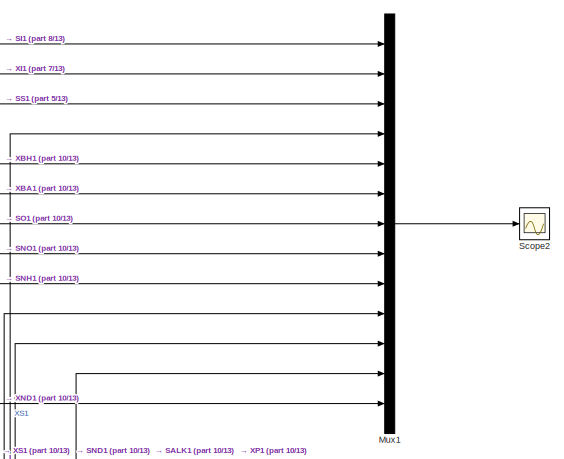
[diagram: root canvas - part 1/13, top center region]
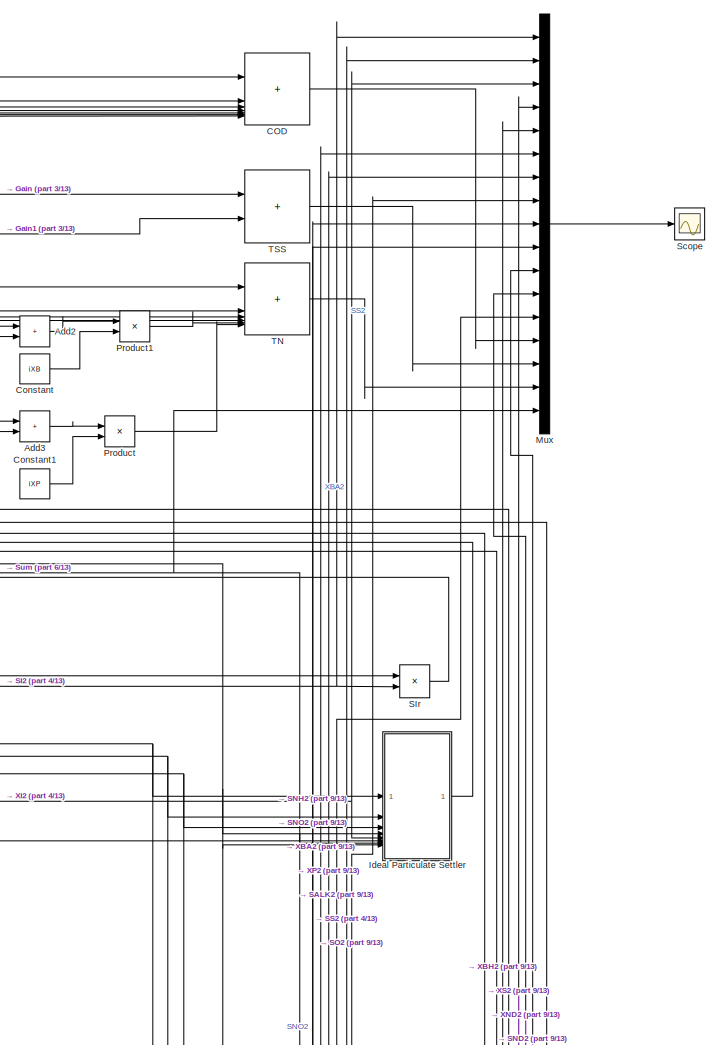
[diagram: root canvas - part 2/13, top right region]
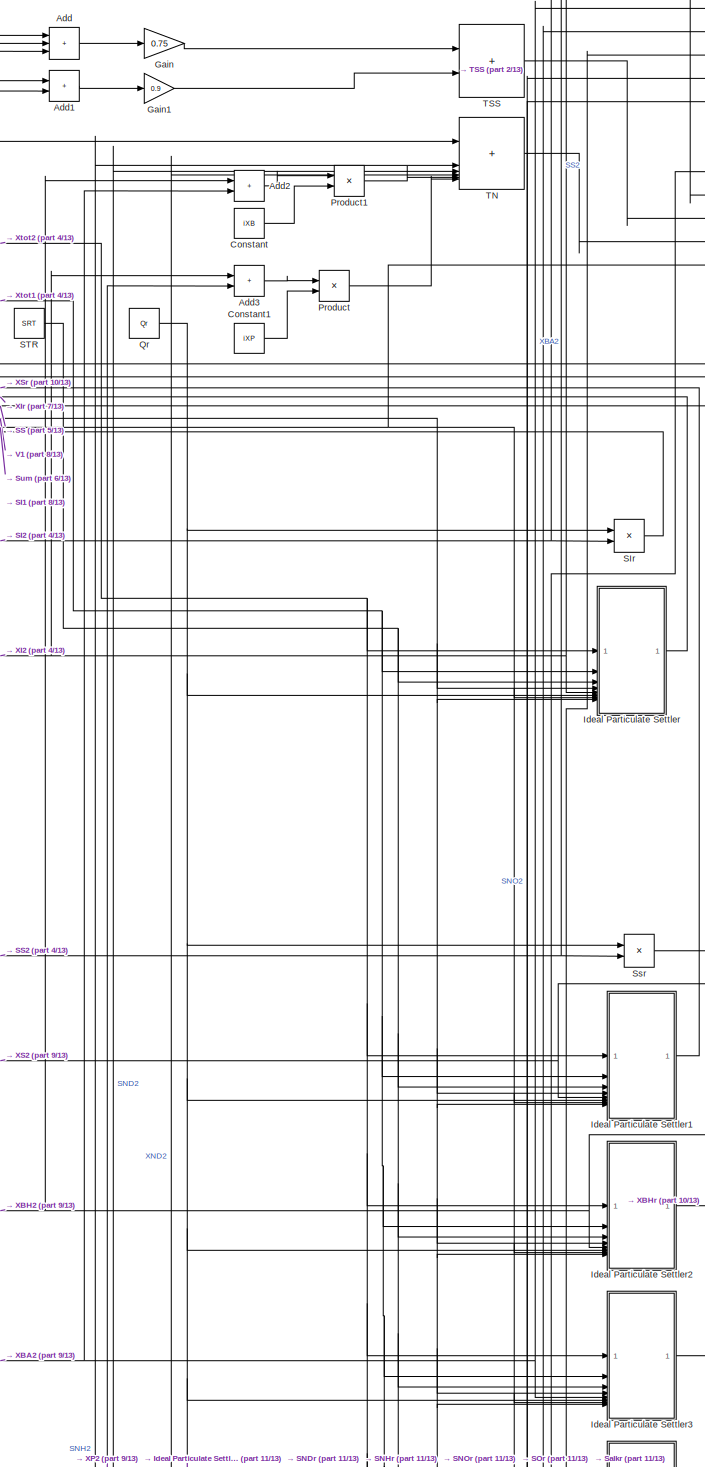
[diagram: root canvas - part 3/13, middle right region]
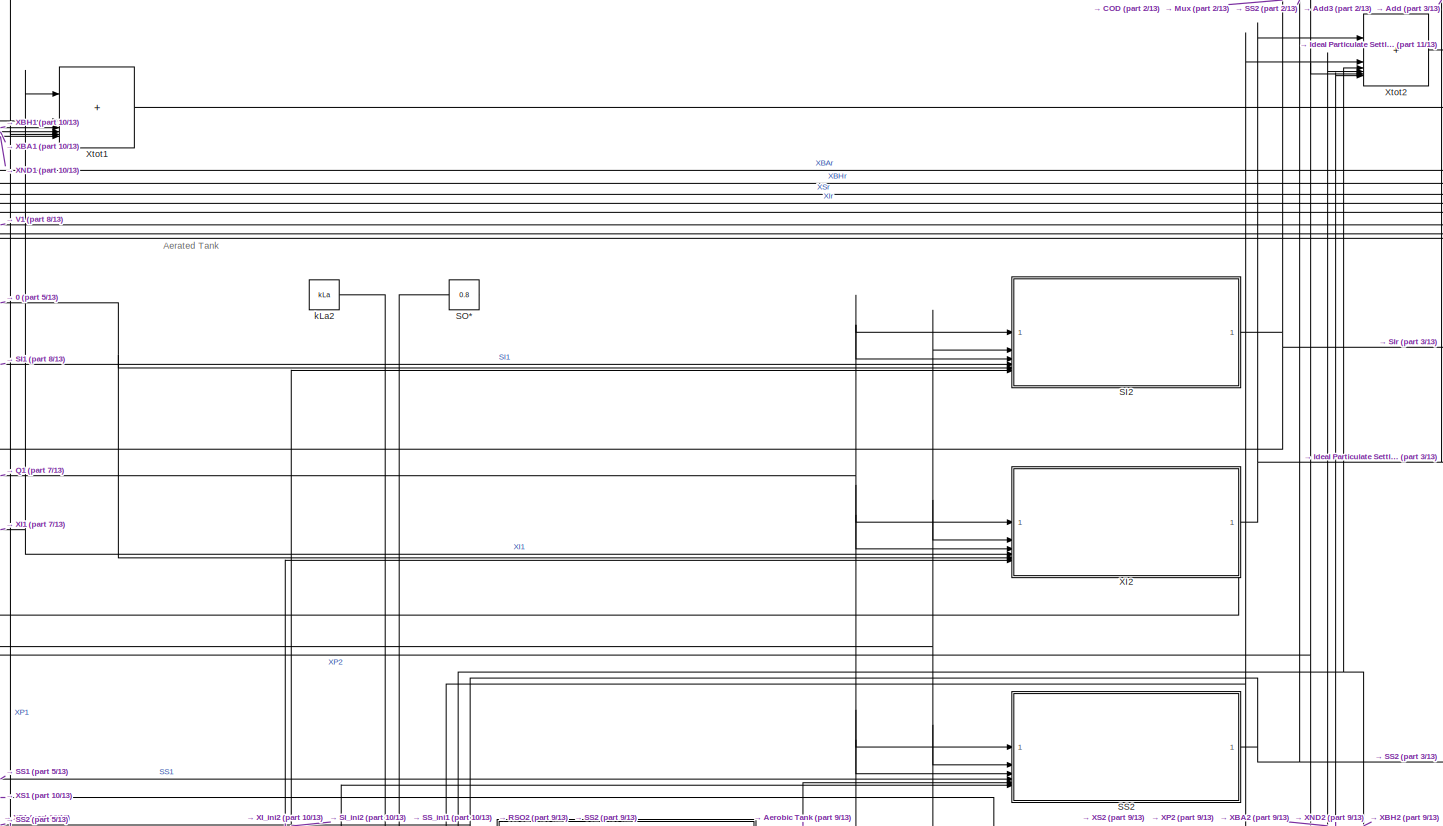
[diagram: root canvas - part 4/13, top center region]
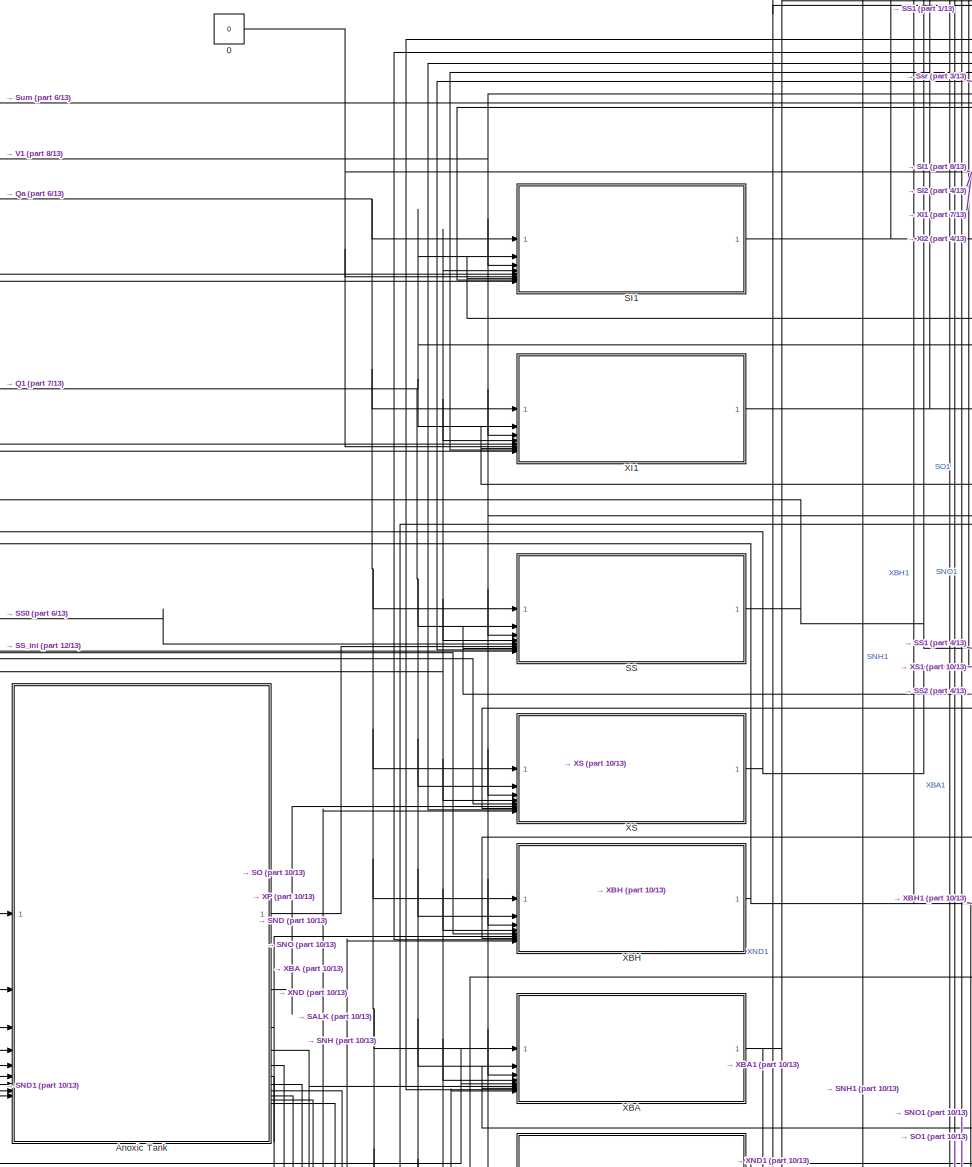
[diagram: root canvas - part 5/13, middle left region]
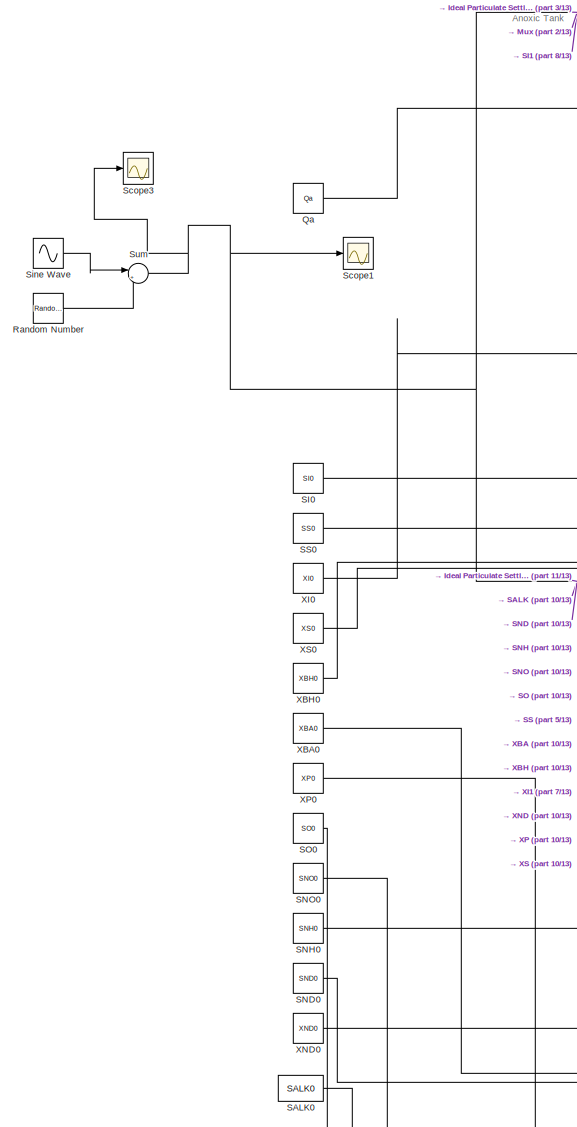
[diagram: root canvas - part 6/13, middle left region]
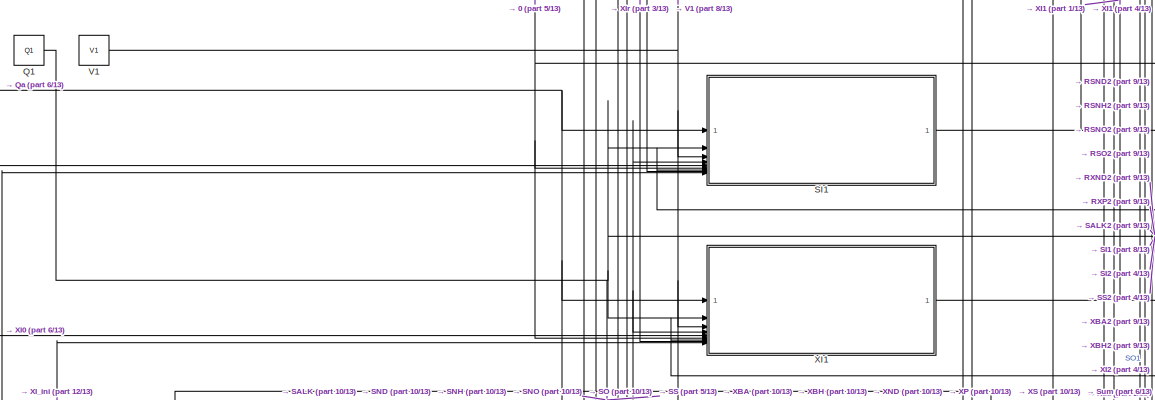
[diagram: root canvas - part 7/13, top left region]
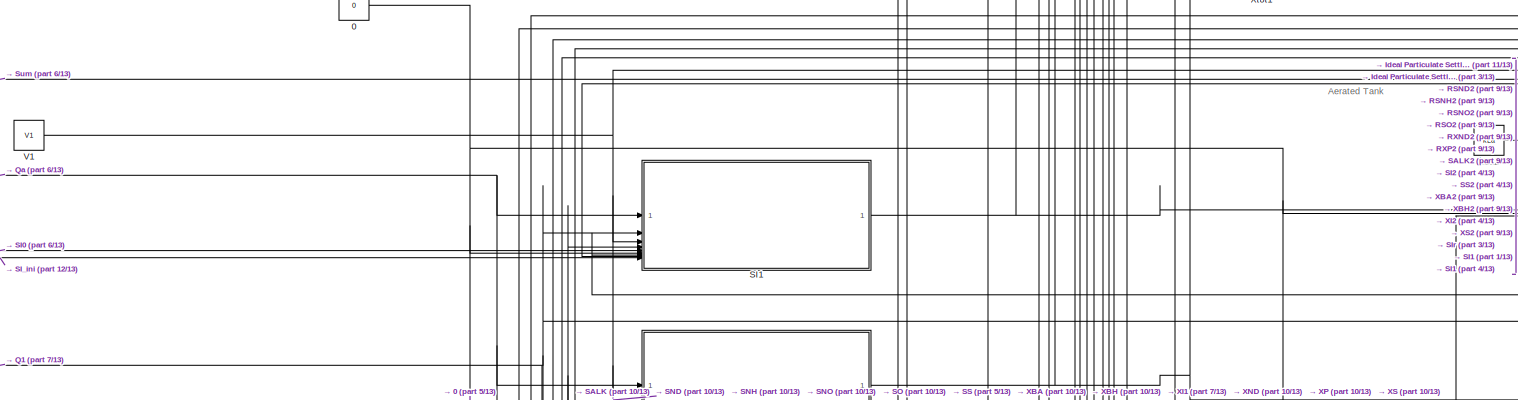
[diagram: root canvas - part 8/13, top center region]
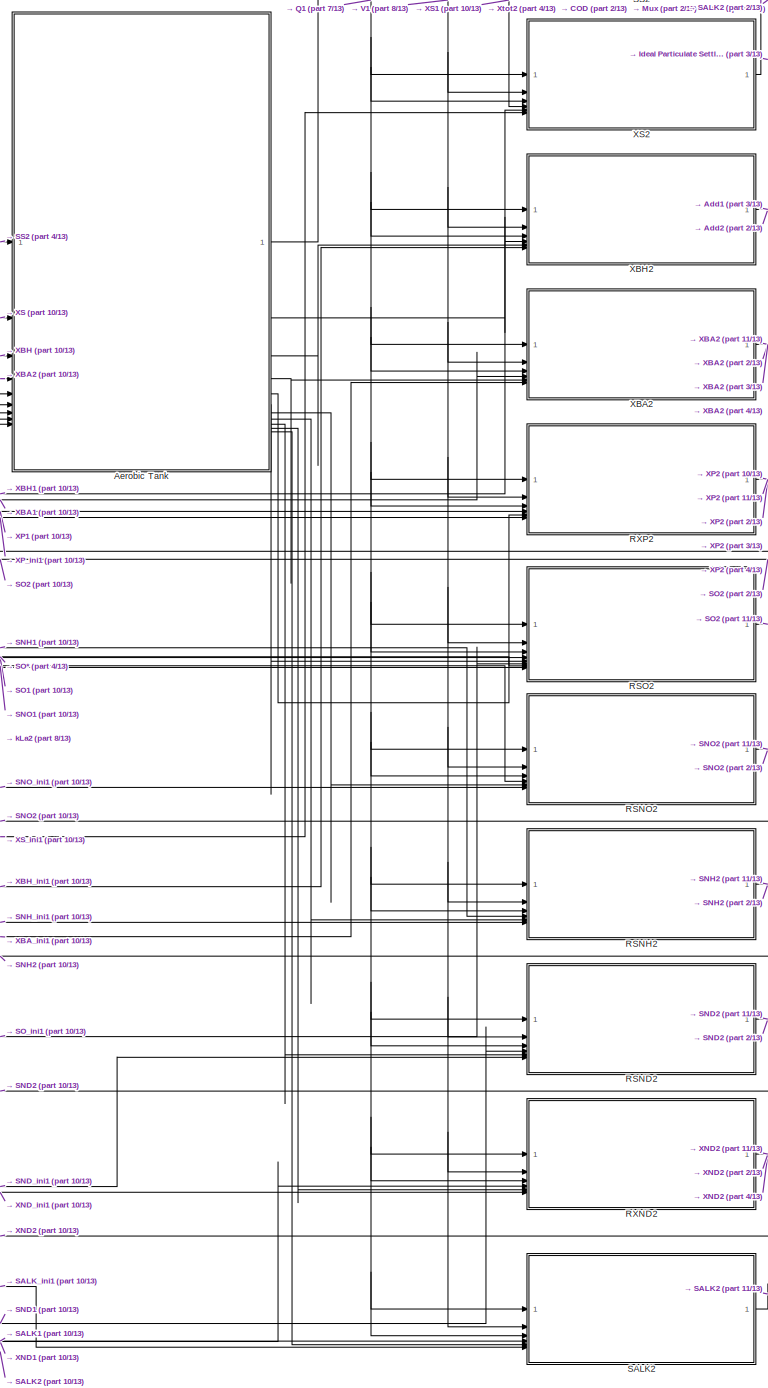
[diagram: root canvas - part 9/13, bottom center region]
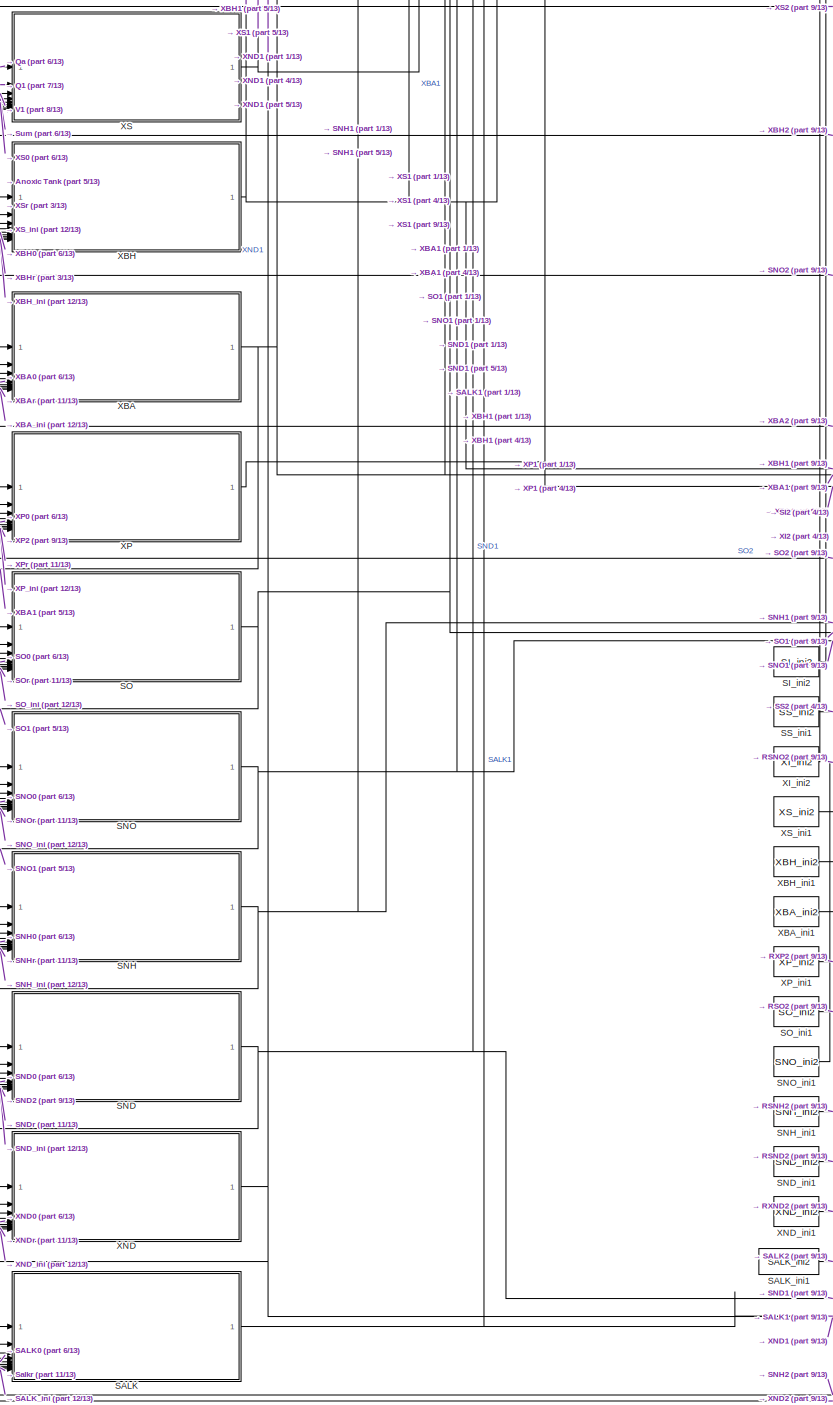
[diagram: root canvas - part 10/13, bottom center region]
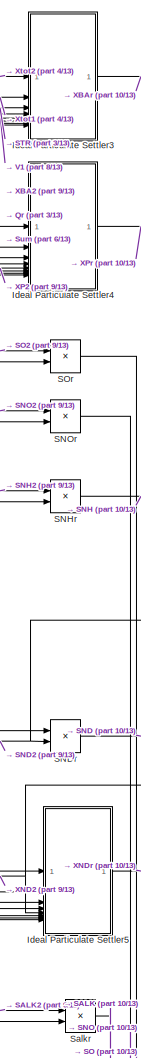
[diagram: root canvas - part 11/13, bottom right region]
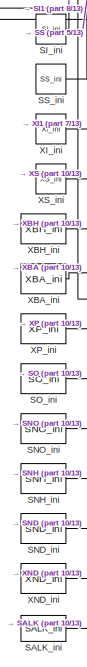
[diagram: root canvas - part 12/13, bottom left region]
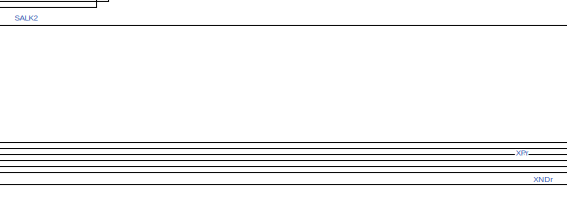
[diagram: root canvas - part 13/13, bottom center region]
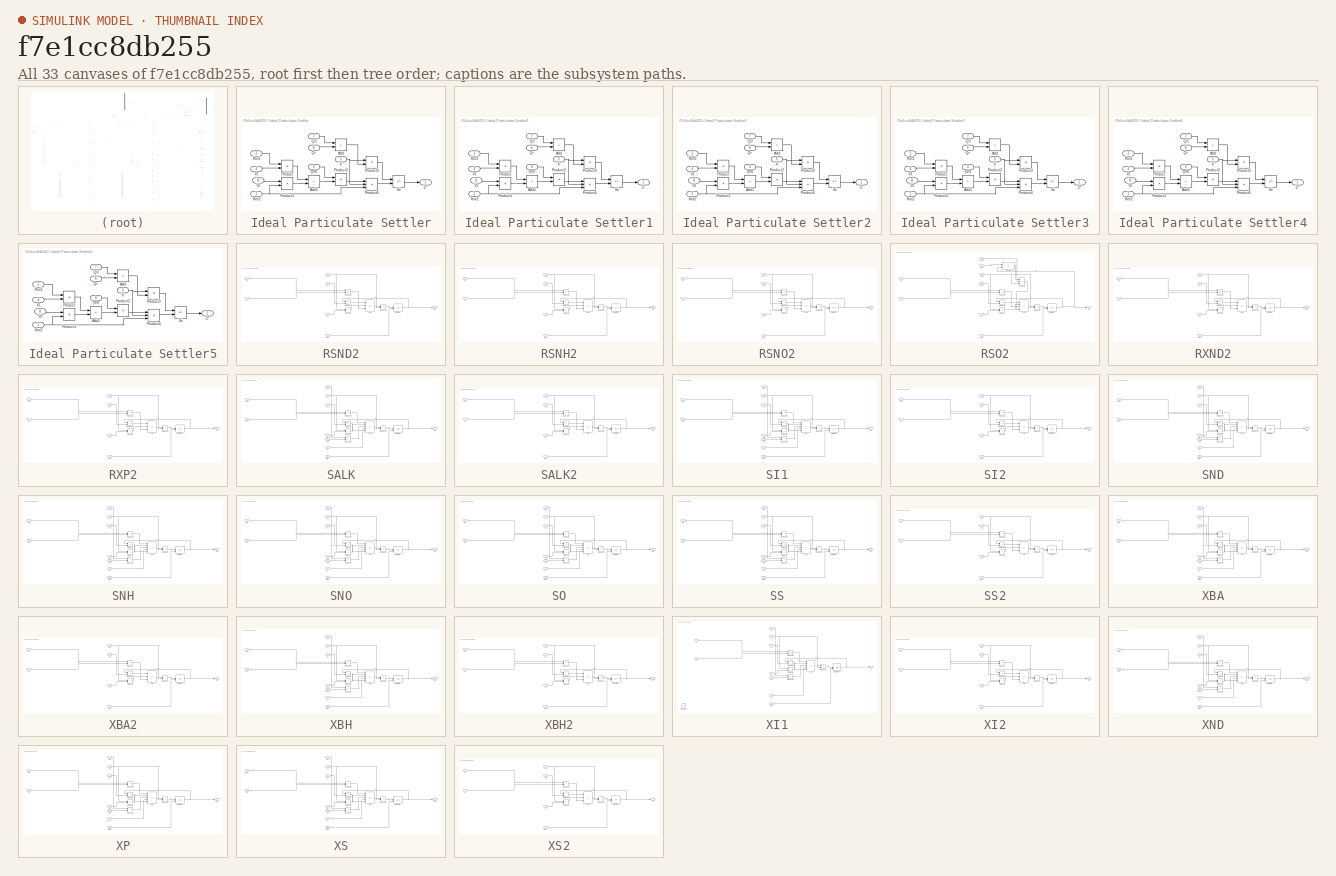
[diagram: thumbnail index - all 33 canvases of the model, root first then tree order]
MODEL slx_f7e1cc8db255
KIND model
CONFIG AbsTol = auto
CONFIG EnableMultiTasking = off
CONFIG FixedStep = auto
CONFIG MaxStep = auto
CONFIG MinStep = auto
CONFIG RelTol = 1e-3
CONFIG SampleTimeConstraint = Unconstrained
CONFIG SolverName = VariableStepAuto
CONFIG StartTime = 0.0
CONFIG StopTime = 10.0
WORKSPACE source: mxarray member
WORKSPACE Q0: Simulink.Parameter (value not decoded)
BLOCK [Constant] 0
  Value = 0
BLOCK [Sum] Add
  IconShape = rectangular
  Inputs = +++
BLOCK [Sum] Add1
  IconShape = rectangular
BLOCK [Sum] Add2
  IconShape = rectangular
BLOCK [Sum] Add3
  IconShape = rectangular
BLOCK [SubSystem] Aerobic Tank
  ReferencedSubsystem = dynamic_models_processes
BLOCK [SubSystem] Anoxic Tank
  ReferencedSubsystem = dynamic_models_processes
BLOCK [Sum] COD
  IconShape = rectangular
  Inputs = 7
BLOCK [Constant] Constant
  Value = iXB
BLOCK [Constant] Constant1
  Value = iXP
BLOCK [Gain] Gain
  Gain = 0.75
BLOCK [Gain] Gain1
  Gain = 0.9
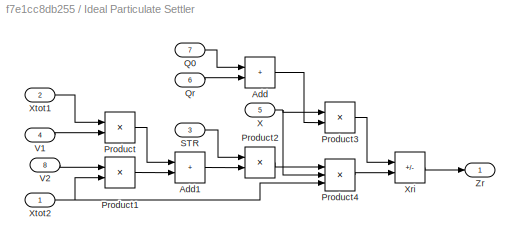
BLOCK [SubSystem] Ideal Particulate Settler
BLOCK [Sum] Ideal Particulate Settler/Add
  IconShape = rectangular
BLOCK [Sum] Ideal Particulate Settler/Add1
  IconShape = rectangular
BLOCK [Product] Ideal Particulate Settler/Product
BLOCK [Product] Ideal Particulate Settler/Product1
BLOCK [Product] Ideal Particulate Settler/Product2
  Inputs = /*
BLOCK [Product] Ideal Particulate Settler/Product3
BLOCK [Product] Ideal Particulate Settler/Product4
  Inputs = **/
BLOCK [Inport] Ideal Particulate Settler/Q0
  Port = 7
BLOCK [Inport] Ideal Particulate Settler/Qr
  Port = 6
BLOCK [Inport] Ideal Particulate Settler/STR
  Port = 3
BLOCK [Inport] Ideal Particulate Settler/V1
  Port = 4
BLOCK [Inport] Ideal Particulate Settler/V2
  Port = 8
BLOCK [Inport] Ideal Particulate Settler/X
  Port = 5
BLOCK [Sum] Ideal Particulate Settler/Xri
  IconShape = rectangular
  Inputs = +-
BLOCK [Inport] Ideal Particulate Settler/Xtot1
  Port = 2
BLOCK [Inport] Ideal Particulate Settler/Xtot2
BLOCK [Outport] Ideal Particulate Settler/Zr
BLOCK [SubSystem] Ideal Particulate Settler1
BLOCK [Sum] Ideal Particulate Settler1/Add
  IconShape = rectangular
BLOCK [Sum] Ideal Particulate Settler1/Add1
  IconShape = rectangular
BLOCK [Product] Ideal Particulate Settler1/Product
BLOCK [Product] Ideal Particulate Settler1/Product1
BLOCK [Product] Ideal Particulate Settler1/Product2
  Inputs = /*
BLOCK [Product] Ideal Particulate Settler1/Product3
BLOCK [Product] Ideal Particulate Settler1/Product4
  Inputs = **/
BLOCK [Inport] Ideal Particulate Settler1/Q0
  Port = 7
BLOCK [Inport] Ideal Particulate Settler1/Qr
  Port = 6
BLOCK [Inport] Ideal Particulate Settler1/STR
  Port = 3
BLOCK [Inport] Ideal Particulate Settler1/V1
  Port = 4
BLOCK [Inport] Ideal Particulate Settler1/V2
  Port = 8
BLOCK [Inport] Ideal Particulate Settler1/X
  Port = 5
BLOCK [Sum] Ideal Particulate Settler1/Xri
  IconShape = rectangular
  Inputs = +-
BLOCK [Inport] Ideal Particulate Settler1/Xtot1
  Port = 2
BLOCK [Inport] Ideal Particulate Settler1/Xtot2
BLOCK [Outport] Ideal Particulate Settler1/Zr
BLOCK [SubSystem] Ideal Particulate Settler2
BLOCK [Sum] Ideal Particulate Settler2/Add
  IconShape = rectangular
BLOCK [Sum] Ideal Particulate Settler2/Add1
  IconShape = rectangular
BLOCK [Product] Ideal Particulate Settler2/Product
BLOCK [Product] Ideal Particulate Settler2/Product1
BLOCK [Product] Ideal Particulate Settler2/Product2
  Inputs = /*
BLOCK [Product] Ideal Particulate Settler2/Product3
BLOCK [Product] Ideal Particulate Settler2/Product4
  Inputs = **/
BLOCK [Inport] Ideal Particulate Settler2/Q0
  Port = 7
BLOCK [Inport] Ideal Particulate Settler2/Qr
  Port = 6
BLOCK [Inport] Ideal Particulate Settler2/STR
  Port = 3
BLOCK [Inport] Ideal Particulate Settler2/V1
  Port = 4
BLOCK [Inport] Ideal Particulate Settler2/V2
  Port = 8
BLOCK [Inport] Ideal Particulate Settler2/X
  Port = 5
BLOCK [Sum] Ideal Particulate Settler2/Xri
  IconShape = rectangular
  Inputs = +-
BLOCK [Inport] Ideal Particulate Settler2/Xtot1
  Port = 2
BLOCK [Inport] Ideal Particulate Settler2/Xtot2
BLOCK [Outport] Ideal Particulate Settler2/Zr
BLOCK [SubSystem] Ideal Particulate Settler3
BLOCK [Sum] Ideal Particulate Settler3/Add
  IconShape = rectangular
BLOCK [Sum] Ideal Particulate Settler3/Add1
  IconShape = rectangular
BLOCK [Product] Ideal Particulate Settler3/Product
BLOCK [Product] Ideal Particulate Settler3/Product1
BLOCK [Product] Ideal Particulate Settler3/Product2
  Inputs = /*
BLOCK [Product] Ideal Particulate Settler3/Product3
BLOCK [Product] Ideal Particulate Settler3/Product4
  Inputs = **/
BLOCK [Inport] Ideal Particulate Settler3/Q0
  Port = 7
BLOCK [Inport] Ideal Particulate Settler3/Qr
  Port = 6
BLOCK [Inport] Ideal Particulate Settler3/STR
  Port = 3
BLOCK [Inport] Ideal Particulate Settler3/V1
  Port = 4
BLOCK [Inport] Ideal Particulate Settler3/V2
  Port = 8
BLOCK [Inport] Ideal Particulate Settler3/X
  Port = 5
BLOCK [Sum] Ideal Particulate Settler3/Xri
  IconShape = rectangular
  Inputs = +-
BLOCK [Inport] Ideal Particulate Settler3/Xtot1
  Port = 2
BLOCK [Inport] Ideal Particulate Settler3/Xtot2
BLOCK [Outport] Ideal Particulate Settler3/Zr
BLOCK [SubSystem] Ideal Particulate Settler4
BLOCK [Sum] Ideal Particulate Settler4/Add
  IconShape = rectangular
BLOCK [Sum] Ideal Particulate Settler4/Add1
  IconShape = rectangular
BLOCK [Product] Ideal Particulate Settler4/Product
BLOCK [Product] Ideal Particulate Settler4/Product1
BLOCK [Product] Ideal Particulate Settler4/Product2
  Inputs = /*
BLOCK [Product] Ideal Particulate Settler4/Product3
BLOCK [Product] Ideal Particulate Settler4/Product4
  Inputs = **/
BLOCK [Inport] Ideal Particulate Settler4/Q0
  Port = 7
BLOCK [Inport] Ideal Particulate Settler4/Qr
  Port = 6
BLOCK [Inport] Ideal Particulate Settler4/STR
  Port = 3
BLOCK [Inport] Ideal Particulate Settler4/V1
  Port = 4
BLOCK [Inport] Ideal Particulate Settler4/V2
  Port = 8
BLOCK [Inport] Ideal Particulate Settler4/X
  Port = 5
BLOCK [Sum] Ideal Particulate Settler4/Xri
  IconShape = rectangular
  Inputs = +-
BLOCK [Inport] Ideal Particulate Settler4/Xtot1
  Port = 2
BLOCK [Inport] Ideal Particulate Settler4/Xtot2
BLOCK [Outport] Ideal Particulate Settler4/Zr
BLOCK [SubSystem] Ideal Particulate Settler5
BLOCK [Sum] Ideal Particulate Settler5/Add
  IconShape = rectangular
BLOCK [Sum] Ideal Particulate Settler5/Add1
  IconShape = rectangular
BLOCK [Product] Ideal Particulate Settler5/Product
BLOCK [Product] Ideal Particulate Settler5/Product1
BLOCK [Product] Ideal Particulate Settler5/Product2
  Inputs = /*
BLOCK [Product] Ideal Particulate Settler5/Product3
BLOCK [Product] Ideal Particulate Settler5/Product4
  Inputs = **/
BLOCK [Inport] Ideal Particulate Settler5/Q0
  Port = 7
BLOCK [Inport] Ideal Particulate Settler5/Qr
  Port = 6
BLOCK [Inport] Ideal Particulate Settler5/STR
  Port = 3
BLOCK [Inport] Ideal Particulate Settler5/V1
  Port = 4
BLOCK [Inport] Ideal Particulate Settler5/V2
  Port = 8
BLOCK [Inport] Ideal Particulate Settler5/X
  Port = 5
BLOCK [Sum] Ideal Particulate Settler5/Xri
  IconShape = rectangular
  Inputs = +-
BLOCK [Inport] Ideal Particulate Settler5/Xtot1
  Port = 2
BLOCK [Inport] Ideal Particulate Settler5/Xtot2
BLOCK [Outport] Ideal Particulate Settler5/Zr
BLOCK [Mux] Mux
  DisplayOption = bar
  Inputs = 17
BLOCK [Mux] Mux1
  DisplayOption = bar
  Inputs = 13
BLOCK [Product] Product
BLOCK [Product] Product1
BLOCK [Constant] Q1
  Value = Q1
BLOCK [Constant] Qa
  Value = Qa
BLOCK [Constant] Qr
  Value = Qr
BLOCK [SubSystem] RSND2
BLOCK [Sum] RSND2/Add
  IconShape = rectangular
  Inputs = ++-
BLOCK [Integrator] RSND2/Integrator
  ContinuousStateAttributes = 'SND2'
  InitialCondition = SI_ini
  InitialConditionSource = external
BLOCK [Product] RSND2/Product1
BLOCK [Product] RSND2/Product13
BLOCK [Product] RSND2/Product2
BLOCK [Product] RSND2/Product21
  Inputs = */
BLOCK [Inport] RSND2/Q1
  Port = 3
BLOCK [Inport] RSND2/Q2
BLOCK [Inport] RSND2/R2
  Port = 5
BLOCK [Inport] RSND2/V2
  Port = 2
BLOCK [Inport] RSND2/Z1
  Port = 4
BLOCK [Outport] RSND2/Z2
BLOCK [Inport] RSND2/Zini
  Port = 6
BLOCK [SubSystem] RSNH2
BLOCK [Sum] RSNH2/Add
  IconShape = rectangular
  Inputs = ++-
BLOCK [Integrator] RSNH2/Integrator
  ContinuousStateAttributes = 'SNH2'
  InitialCondition = SI_ini
  InitialConditionSource = external
BLOCK [Product] RSNH2/Product1
BLOCK [Product] RSNH2/Product13
BLOCK [Product] RSNH2/Product2
BLOCK [Product] RSNH2/Product21
  Inputs = */
BLOCK [Inport] RSNH2/Q1
  Port = 3
BLOCK [Inport] RSNH2/Q2
BLOCK [Inport] RSNH2/R2
  Port = 5
BLOCK [Inport] RSNH2/V2
  Port = 2
BLOCK [Inport] RSNH2/Z1
  Port = 4
BLOCK [Outport] RSNH2/Z2
BLOCK [Inport] RSNH2/Zini
  Port = 6
BLOCK [SubSystem] RSNO2
BLOCK [Sum] RSNO2/Add
  IconShape = rectangular
  Inputs = ++-
BLOCK [Integrator] RSNO2/Integrator
  ContinuousStateAttributes = 'SNO2'
  InitialCondition = SI_ini
  InitialConditionSource = external
BLOCK [Product] RSNO2/Product1
BLOCK [Product] RSNO2/Product13
BLOCK [Product] RSNO2/Product2
BLOCK [Product] RSNO2/Product21
  Inputs = */
BLOCK [Inport] RSNO2/Q1
  Port = 3
BLOCK [Inport] RSNO2/Q2
BLOCK [Inport] RSNO2/R2
  Port = 5
BLOCK [Inport] RSNO2/V2
  Port = 2
BLOCK [Inport] RSNO2/Z1
  Port = 4
BLOCK [Outport] RSNO2/Z2
BLOCK [Inport] RSNO2/Zini
  Port = 6
BLOCK [SubSystem] RSO2
BLOCK [Sum] RSO2/Add
  IconShape = rectangular
  Inputs = ++-+
BLOCK [Integrator] RSO2/Integrator
  ContinuousStateAttributes = 'SO2'
  InitialCondition = SI_ini
  InitialConditionSource = external
BLOCK [Product] RSO2/Product1
BLOCK [Product] RSO2/Product13
BLOCK [Product] RSO2/Product2
BLOCK [Product] RSO2/Product21
  Inputs = */
BLOCK [Product] RSO2/Product3
  Inputs = ***
BLOCK [Inport] RSO2/Q1
  Port = 3
BLOCK [Inport] RSO2/Q2
BLOCK [Inport] RSO2/R2
  Port = 5
BLOCK [Inport] RSO2/SO*
  Port = 7
BLOCK [Sum] RSO2/SO*-SO
  IconShape = rectangular
  Inputs = +-
BLOCK [Inport] RSO2/V2
  Port = 2
BLOCK [Inport] RSO2/Z1
  Port = 4
BLOCK [Outport] RSO2/Z2
BLOCK [Inport] RSO2/Zini
  Port = 6
BLOCK [Inport] RSO2/kLa
  Port = 8
BLOCK [SubSystem] RXND2
BLOCK [Sum] RXND2/Add
  IconShape = rectangular
  Inputs = ++-
BLOCK [Integrator] RXND2/Integrator
  ContinuousStateAttributes = 'XND2'
  InitialCondition = SI_ini
  InitialConditionSource = external
BLOCK [Product] RXND2/Product1
BLOCK [Product] RXND2/Product13
BLOCK [Product] RXND2/Product2
BLOCK [Product] RXND2/Product21
  Inputs = */
BLOCK [Inport] RXND2/Q1
  Port = 3
BLOCK [Inport] RXND2/Q2
BLOCK [Inport] RXND2/R2
  Port = 5
BLOCK [Inport] RXND2/V2
  Port = 2
BLOCK [Inport] RXND2/Z1
  Port = 4
BLOCK [Outport] RXND2/Z2
BLOCK [Inport] RXND2/Zini
  Port = 6
BLOCK [SubSystem] RXP2
BLOCK [Sum] RXP2/Add
  IconShape = rectangular
  Inputs = ++-
BLOCK [Integrator] RXP2/Integrator
  ContinuousStateAttributes = 'XP2'
  InitialCondition = SI_ini
  InitialConditionSource = external
BLOCK [Product] RXP2/Product1
BLOCK [Product] RXP2/Product13
BLOCK [Product] RXP2/Product2
BLOCK [Product] RXP2/Product21
  Inputs = */
BLOCK [Inport] RXP2/Q1
  Port = 3
BLOCK [Inport] RXP2/Q2
BLOCK [Inport] RXP2/R2
  Port = 5
BLOCK [Inport] RXP2/V2
  Port = 2
BLOCK [Inport] RXP2/Z1
  Port = 4
BLOCK [Outport] RXP2/Z2
BLOCK [Inport] RXP2/Zini
  Port = 6
BLOCK [RandomNumber] Random Number
  Mean = 2000
  SampleTime = 0.1
  Variance = 250000
BLOCK [SubSystem] SALK
BLOCK [Sum] SALK/Add
  IconShape = rectangular
  Inputs = ++++-
BLOCK [Integrator] SALK/Integrator
  ContinuousStateAttributes = 'SALK1'
  InitialCondition = SI_ini
  InitialConditionSource = external
BLOCK [Product] SALK/Product1
BLOCK [Product] SALK/Product13
BLOCK [Product] SALK/Product14
BLOCK [Product] SALK/Product2
BLOCK [Product] SALK/Product21
  Inputs = */
BLOCK [Inport] SALK/Q0
  Port = 4
BLOCK [Inport] SALK/Q1
  Port = 2
BLOCK [Inport] SALK/Qa
BLOCK [Inport] SALK/R1
  Port = 6
BLOCK [Inport] SALK/V1
  Port = 3
BLOCK [Inport] SALK/Z0
  Port = 5
BLOCK [Outport] SALK/Z1
BLOCK [Inport] SALK/Za
  Port = 7
BLOCK [Inport] SALK/Zini
  Port = 9
BLOCK [Inport] SALK/Zr
  Port = 8
BLOCK [Constant] SALK0
  Value = SALK0
BLOCK [SubSystem] SALK2
BLOCK [Sum] SALK2/Add
  IconShape = rectangular
  Inputs = ++-
BLOCK [Integrator] SALK2/Integrator
  ContinuousStateAttributes = 'SALK2'
  InitialCondition = SI_ini
  InitialConditionSource = external
BLOCK [Product] SALK2/Product1
BLOCK [Product] SALK2/Product13
BLOCK [Product] SALK2/Product2
BLOCK [Product] SALK2/Product21
  Inputs = */
BLOCK [Inport] SALK2/Q1
  Port = 3
BLOCK [Inport] SALK2/Q2
BLOCK [Inport] SALK2/R2
  Port = 5
BLOCK [Inport] SALK2/V2
  Port = 2
BLOCK [Inport] SALK2/Z1
  Port = 4
BLOCK [Outport] SALK2/Z2
BLOCK [Inport] SALK2/Zini
  Port = 6
BLOCK [Constant] SALK_ini
  Value = SALK_ini
BLOCK [Constant] SALK_ini1
  Value = SALK_ini2
BLOCK [Constant] SI0
  Value = SI0
BLOCK [SubSystem] SI1
BLOCK [Sum] SI1/Add
  IconShape = rectangular
  Inputs = ++++-
BLOCK [Integrator] SI1/Integrator
  ContinuousStateAttributes = 'SI1'
  InitialCondition = SI_ini
  InitialConditionSource = external
BLOCK [Product] SI1/Product1
BLOCK [Product] SI1/Product13
BLOCK [Product] SI1/Product14
BLOCK [Product] SI1/Product2
BLOCK [Product] SI1/Product21
  Inputs = */
BLOCK [Inport] SI1/Q0
  Port = 4
BLOCK [Inport] SI1/Q1
  Port = 2
BLOCK [Inport] SI1/Qa
BLOCK [Inport] SI1/R1
  Port = 6
BLOCK [Inport] SI1/V1
  Port = 3
BLOCK [Inport] SI1/Z0
  Port = 5
BLOCK [Outport] SI1/Z1
BLOCK [Inport] SI1/Za
  Port = 7
BLOCK [Inport] SI1/Zini
  Port = 9
BLOCK [Inport] SI1/Zr
  Port = 8
BLOCK [SubSystem] SI2
BLOCK [Sum] SI2/Add
  IconShape = rectangular
  Inputs = ++-
BLOCK [Integrator] SI2/Integrator
  ContinuousStateAttributes = 'SI2'
  InitialCondition = SI_ini
  InitialConditionSource = external
BLOCK [Product] SI2/Product1
BLOCK [Product] SI2/Product13
BLOCK [Product] SI2/Product2
BLOCK [Product] SI2/Product21
  Inputs = */
BLOCK [Inport] SI2/Q1
  Port = 3
BLOCK [Inport] SI2/Q2
BLOCK [Inport] SI2/R2
  Port = 5
BLOCK [Inport] SI2/V2
  Port = 2
BLOCK [Inport] SI2/Z1
  Port = 4
BLOCK [Outport] SI2/Z2
BLOCK [Inport] SI2/Zini
  Port = 6
BLOCK [Constant] SI_ini
  Value = SI_ini
BLOCK [Constant] SI_ini2
  Value = SI_ini2
BLOCK [Product] SIr
BLOCK [SubSystem] SND
BLOCK [Sum] SND/Add
  IconShape = rectangular
  Inputs = ++++-
BLOCK [Integrator] SND/Integrator
  ContinuousStateAttributes = 'SND1'
  InitialCondition = SI_ini
  InitialConditionSource = external
BLOCK [Product] SND/Product1
BLOCK [Product] SND/Product13
BLOCK [Product] SND/Product14
BLOCK [Product] SND/Product2
BLOCK [Product] SND/Product21
  Inputs = */
BLOCK [Inport] SND/Q0
  Port = 4
BLOCK [Inport] SND/Q1
  Port = 2
BLOCK [Inport] SND/Qa
BLOCK [Inport] SND/R1
  Port = 6
BLOCK [Inport] SND/V1
  Port = 3
BLOCK [Inport] SND/Z0
  Port = 5
BLOCK [Outport] SND/Z1
BLOCK [Inport] SND/Za
  Port = 7
BLOCK [Inport] SND/Zini
  Port = 9
BLOCK [Inport] SND/Zr
  Port = 8
BLOCK [Constant] SND0
  Value = SND0
BLOCK [Constant] SND_ini
  Value = SND_ini
BLOCK [Constant] SND_ini1
  Value = SND_ini2
BLOCK [Product] SNDr
BLOCK [SubSystem] SNH
BLOCK [Sum] SNH/Add
  IconShape = rectangular
  Inputs = ++++-
BLOCK [Integrator] SNH/Integrator
  ContinuousStateAttributes = 'SNH1'
  InitialCondition = SI_ini
  InitialConditionSource = external
BLOCK [Product] SNH/Product1
BLOCK [Product] SNH/Product13
BLOCK [Product] SNH/Product14
BLOCK [Product] SNH/Product2
BLOCK [Product] SNH/Product21
  Inputs = */
BLOCK [Inport] SNH/Q0
  Port = 4
BLOCK [Inport] SNH/Q1
  Port = 2
BLOCK [Inport] SNH/Qa
BLOCK [Inport] SNH/R1
  Port = 6
BLOCK [Inport] SNH/V1
  Port = 3
BLOCK [Inport] SNH/Z0
  Port = 5
BLOCK [Outport] SNH/Z1
BLOCK [Inport] SNH/Za
  Port = 7
BLOCK [Inport] SNH/Zini
  Port = 9
BLOCK [Inport] SNH/Zr
  Port = 8
BLOCK [Constant] SNH0
  Value = SNH0
BLOCK [Constant] SNH_ini
  Value = SNH_ini
BLOCK [Constant] SNH_ini1
  Value = SNH_ini2
BLOCK [Product] SNHr
BLOCK [SubSystem] SNO
BLOCK [Sum] SNO/Add
  IconShape = rectangular
  Inputs = ++++-
BLOCK [Integrator] SNO/Integrator
  ContinuousStateAttributes = 'SNO1'
  InitialCondition = SI_ini
  InitialConditionSource = external
BLOCK [Product] SNO/Product1
BLOCK [Product] SNO/Product13
BLOCK [Product] SNO/Product14
BLOCK [Product] SNO/Product2
BLOCK [Product] SNO/Product21
  Inputs = */
BLOCK [Inport] SNO/Q0
  Port = 4
BLOCK [Inport] SNO/Q1
  Port = 2
BLOCK [Inport] SNO/Qa
BLOCK [Inport] SNO/R1
  Port = 6
BLOCK [Inport] SNO/V1
  Port = 3
BLOCK [Inport] SNO/Z0
  Port = 5
BLOCK [Outport] SNO/Z1
BLOCK [Inport] SNO/Za
  Port = 7
BLOCK [Inport] SNO/Zini
  Port = 9
BLOCK [Inport] SNO/Zr
  Port = 8
BLOCK [Constant] SNO0
  Value = SNO0
BLOCK [Constant] SNO_ini
  Value = SNO_ini
BLOCK [Constant] SNO_ini1
  Value = SNO_ini2
BLOCK [Product] SNOr
BLOCK [SubSystem] SO
BLOCK [Constant] SO*
  Value = 0.8
BLOCK [Sum] SO/Add
  IconShape = rectangular
  Inputs = ++++-
BLOCK [Integrator] SO/Integrator
  ContinuousStateAttributes = 'SO1'
  InitialCondition = SI_ini
  InitialConditionSource = external
BLOCK [Product] SO/Product1
BLOCK [Product] SO/Product13
BLOCK [Product] SO/Product14
BLOCK [Product] SO/Product2
BLOCK [Product] SO/Product21
  Inputs = */
BLOCK [Inport] SO/Q0
  Port = 4
BLOCK [Inport] SO/Q1
  Port = 2
BLOCK [Inport] SO/Qa
BLOCK [Inport] SO/R1
  Port = 6
BLOCK [Inport] SO/V1
  Port = 3
BLOCK [Inport] SO/Z0
  Port = 5
BLOCK [Outport] SO/Z1
BLOCK [Inport] SO/Za
  Port = 7
BLOCK [Inport] SO/Zini
  Port = 9
BLOCK [Inport] SO/Zr
  Port = 8
BLOCK [Constant] SO0
  Value = SO0
BLOCK [Constant] SO_ini
  Value = SO_ini
BLOCK [Constant] SO_ini1
  Value = SO_ini2
BLOCK [Product] SOr
BLOCK [SubSystem] SS
BLOCK [Sum] SS/Add
  IconShape = rectangular
  Inputs = ++++-
BLOCK [Integrator] SS/Integrator
  ContinuousStateAttributes = 'SS1'
  InitialCondition = SI_ini
  InitialConditionSource = external
BLOCK [Product] SS/Product1
BLOCK [Product] SS/Product13
BLOCK [Product] SS/Product14
BLOCK [Product] SS/Product2
BLOCK [Product] SS/Product21
  Inputs = */
BLOCK [Inport] SS/Q0
  Port = 4
BLOCK [Inport] SS/Q1
  Port = 2
BLOCK [Inport] SS/Qa
BLOCK [Inport] SS/R1
  Port = 6
BLOCK [Inport] SS/V1
  Port = 3
BLOCK [Inport] SS/Z0
  Port = 5
BLOCK [Outport] SS/Z1
BLOCK [Inport] SS/Za
  Port = 7
BLOCK [Inport] SS/Zini
  Port = 9
BLOCK [Inport] SS/Zr
  Port = 8
BLOCK [Constant] SS0
  Value = SS0
BLOCK [SubSystem] SS2
BLOCK [Sum] SS2/Add
  IconShape = rectangular
  Inputs = ++-
BLOCK [Integrator] SS2/Integrator
  ContinuousStateAttributes = 'SS2'
  InitialCondition = SI_ini
  InitialConditionSource = external
BLOCK [Product] SS2/Product1
BLOCK [Product] SS2/Product13
BLOCK [Product] SS2/Product2
BLOCK [Product] SS2/Product21
  Inputs = */
BLOCK [Inport] SS2/Q1
  Port = 3
BLOCK [Inport] SS2/Q2
BLOCK [Inport] SS2/R2
  Port = 5
BLOCK [Inport] SS2/V2
  Port = 2
BLOCK [Inport] SS2/Z1
  Port = 4
BLOCK [Outport] SS2/Z2
BLOCK [Inport] SS2/Zini
  Port = 6
BLOCK [Constant] SS_ini
  Value = SS_ini
BLOCK [Constant] SS_ini1
  Value = SS_ini2
BLOCK [Constant] STR
  Value = SRT
BLOCK [Product] Salkr
BLOCK [Scope] Scope
  Floating = off
  NumInputPorts = 1
  ScopeSpecificationString = Simulink.scopes.TimeScopeBlockCfg('CurrentConfiguration', extmgr.ConfigurationSet(extmgr.Configuration('Core','General UI',true),extmgr.Configuration('Core','Source UI',true),extmgr.Configuration('Sources','WiredSimulink',true,'DataLogging',true,'DataLoggingVariableName','SimulationData','DataLoggingLimitDataPoints',true,'DataLoggingSaveFormat','Array'),extmgr.Configuration('Visuals','Time Domain'...<+2105ch>
BLOCK [Scope] Scope1
  Floating = off
  NumInputPorts = 1
  ScopeSpecificationString = Simulink.scopes.TimeScopeBlockCfg('CurrentConfiguration', extmgr.ConfigurationSet(extmgr.Configuration('Core','General UI',true),extmgr.Configuration('Core','Source UI',true),extmgr.Configuration('Sources','WiredSimulink',true,'DataLoggingVariableName','ScopeData1'),extmgr.Configuration('Visuals','Time Domain',true,'SerializedDisplays',{struct('MinYLimReal','8666.85827','MaxYLimReal','35284.51337'...<+1646ch>
BLOCK [Scope] Scope2
  Floating = off
  NumInputPorts = 1
  ScopeSpecificationString = Simulink.scopes.TimeScopeBlockCfg('CurrentConfiguration', extmgr.ConfigurationSet(extmgr.Configuration('Core','General UI',true),extmgr.Configuration('Core','Source UI',true),extmgr.Configuration('Sources','WiredSimulink',true,'DataLogging',true,'DataLoggingVariableName','SimulationData1','DataLoggingSaveFormat','Array'),extmgr.Configuration('Visuals','Time Domain',true,'SerializedDisplays',{struc...<+2052ch>
BLOCK [Scope] Scope3
  Floating = off
  NumInputPorts = 1
  ScopeSpecificationString = Simulink.scopes.TimeScopeBlockCfg('CurrentConfiguration', extmgr.ConfigurationSet(extmgr.Configuration('Core','General UI',true),extmgr.Configuration('Core','Source UI',true),extmgr.Configuration('Sources','WiredSimulink',true,'DataLoggingVariableName','ScopeData1'),extmgr.Configuration('Visuals','Time Domain',true,'SerializedDisplays',{struct('MinYLimReal','7500.04406','MaxYLimReal','32499.64954'...<+1562ch>
BLOCK [Sin] Sine Wave
  Amplitude = 10000
  Bias = 20000
  Frequency = 2*pi
  SampleTime = 0
BLOCK [Product] Ssr
BLOCK [Sum] Sum
  Inputs = |++
BLOCK [Sum] TN
  IconShape = rectangular
  Inputs = 6
BLOCK [Sum] TSS
  IconShape = rectangular
  Inputs = 2
BLOCK [Constant] V1
  Value = V1
BLOCK [SubSystem] XBA
BLOCK [Sum] XBA/Add
  IconShape = rectangular
  Inputs = ++++-
BLOCK [Integrator] XBA/Integrator
  ContinuousStateAttributes = 'XBA1'
  InitialCondition = SI_ini
  InitialConditionSource = external
BLOCK [Product] XBA/Product1
BLOCK [Product] XBA/Product13
BLOCK [Product] XBA/Product14
BLOCK [Product] XBA/Product2
BLOCK [Product] XBA/Product21
  Inputs = */
BLOCK [Inport] XBA/Q0
  Port = 4
BLOCK [Inport] XBA/Q1
  Port = 2
BLOCK [Inport] XBA/Qa
BLOCK [Inport] XBA/R1
  Port = 6
BLOCK [Inport] XBA/V1
  Port = 3
BLOCK [Inport] XBA/Z0
  Port = 5
BLOCK [Outport] XBA/Z1
BLOCK [Inport] XBA/Za
  Port = 7
BLOCK [Inport] XBA/Zini
  Port = 9
BLOCK [Inport] XBA/Zr
  Port = 8
BLOCK [Constant] XBA0
  Value = XBA0
BLOCK [SubSystem] XBA2
BLOCK [Sum] XBA2/Add
  IconShape = rectangular
  Inputs = ++-
BLOCK [Integrator] XBA2/Integrator
  ContinuousStateAttributes = 'XBA2'
  InitialCondition = SI_ini
  InitialConditionSource = external
BLOCK [Product] XBA2/Product1
BLOCK [Product] XBA2/Product13
BLOCK [Product] XBA2/Product2
BLOCK [Product] XBA2/Product21
  Inputs = */
BLOCK [Inport] XBA2/Q1
  Port = 3
BLOCK [Inport] XBA2/Q2
BLOCK [Inport] XBA2/R2
  Port = 5
BLOCK [Inport] XBA2/V2
  Port = 2
BLOCK [Inport] XBA2/Z1
  Port = 4
BLOCK [Outport] XBA2/Z2
BLOCK [Inport] XBA2/Zini
  Port = 6
BLOCK [Constant] XBA_ini
  Value = XBA_ini
BLOCK [Constant] XBA_ini1
  Value = XBA_ini2
BLOCK [SubSystem] XBH
BLOCK [Sum] XBH/Add
  IconShape = rectangular
  Inputs = ++++-
BLOCK [Integrator] XBH/Integrator
  ContinuousStateAttributes = 'XBH1'
  InitialCondition = SI_ini
  InitialConditionSource = external
BLOCK [Product] XBH/Product1
BLOCK [Product] XBH/Product13
BLOCK [Product] XBH/Product14
BLOCK [Product] XBH/Product2
BLOCK [Product] XBH/Product21
  Inputs = */
BLOCK [Inport] XBH/Q0
  Port = 4
BLOCK [Inport] XBH/Q1
  Port = 2
BLOCK [Inport] XBH/Qa
BLOCK [Inport] XBH/R1
  Port = 6
BLOCK [Inport] XBH/V1
  Port = 3
BLOCK [Inport] XBH/Z0
  Port = 5
BLOCK [Outport] XBH/Z1
BLOCK [Inport] XBH/Za
  Port = 7
BLOCK [Inport] XBH/Zini
  Port = 9
BLOCK [Inport] XBH/Zr
  Port = 8
BLOCK [Constant] XBH0
  Value = XBH0
BLOCK [SubSystem] XBH2
BLOCK [Sum] XBH2/Add
  IconShape = rectangular
  Inputs = ++-
BLOCK [Integrator] XBH2/Integrator
  ContinuousStateAttributes = 'XBH2'
  InitialCondition = SI_ini
  InitialConditionSource = external
BLOCK [Product] XBH2/Product1
BLOCK [Product] XBH2/Product13
BLOCK [Product] XBH2/Product2
BLOCK [Product] XBH2/Product21
  Inputs = */
BLOCK [Inport] XBH2/Q1
  Port = 3
BLOCK [Inport] XBH2/Q2
BLOCK [Inport] XBH2/R2
  Port = 5
BLOCK [Inport] XBH2/V2
  Port = 2
BLOCK [Inport] XBH2/Z1
  Port = 4
BLOCK [Outport] XBH2/Z2
BLOCK [Inport] XBH2/Zini
  Port = 6
BLOCK [Constant] XBH_ini
  Value = XBH_ini
BLOCK [Constant] XBH_ini1
  Value = XBH_ini2
BLOCK [Constant] XI0
  Value = XI0
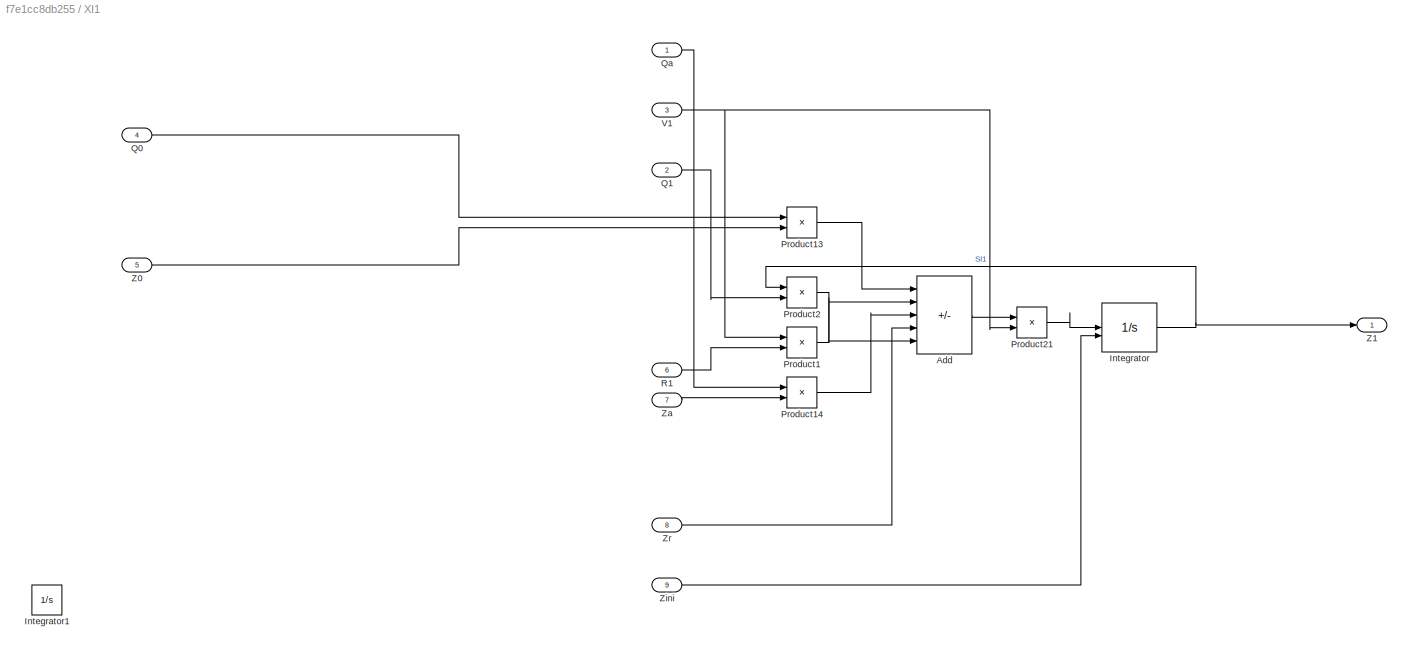
BLOCK [SubSystem] XI1
BLOCK [Sum] XI1/Add
  IconShape = rectangular
  Inputs = ++++-
BLOCK [Integrator] XI1/Integrator
  ContinuousStateAttributes = 'XI1'
  InitialCondition = SI_ini
  InitialConditionSource = external
BLOCK [Integrator] XI1/Integrator1
BLOCK [Product] XI1/Product1
BLOCK [Product] XI1/Product13
BLOCK [Product] XI1/Product14
BLOCK [Product] XI1/Product2
BLOCK [Product] XI1/Product21
  Inputs = */
BLOCK [Inport] XI1/Q0
  Port = 4
BLOCK [Inport] XI1/Q1
  Port = 2
BLOCK [Inport] XI1/Qa
BLOCK [Inport] XI1/R1
  Port = 6
BLOCK [Inport] XI1/V1
  Port = 3
BLOCK [Inport] XI1/Z0
  Port = 5
BLOCK [Outport] XI1/Z1
BLOCK [Inport] XI1/Za
  Port = 7
BLOCK [Inport] XI1/Zini
  Port = 9
BLOCK [Inport] XI1/Zr
  Port = 8
BLOCK [SubSystem] XI2
BLOCK [Sum] XI2/Add
  IconShape = rectangular
  Inputs = ++-
BLOCK [Integrator] XI2/Integrator
  ContinuousStateAttributes = 'XI2'
  InitialCondition = SI_ini
  InitialConditionSource = external
BLOCK [Product] XI2/Product1
BLOCK [Product] XI2/Product13
BLOCK [Product] XI2/Product2
BLOCK [Product] XI2/Product21
  Inputs = */
BLOCK [Inport] XI2/Q1
  Port = 3
BLOCK [Inport] XI2/Q2
BLOCK [Inport] XI2/R2
  Port = 5
BLOCK [Inport] XI2/V2
  Port = 2
BLOCK [Inport] XI2/Z1
  Port = 4
BLOCK [Outport] XI2/Z2
BLOCK [Inport] XI2/Zini
  Port = 6
BLOCK [Constant] XI_ini
  Value = XI_ini
BLOCK [Constant] XI_ini2
  Value = XI_ini2
BLOCK [SubSystem] XND
BLOCK [Sum] XND/Add
  IconShape = rectangular
  Inputs = ++++-
BLOCK [Integrator] XND/Integrator
  ContinuousStateAttributes = 'XND1'
  InitialCondition = SI_ini
  InitialConditionSource = external
BLOCK [Product] XND/Product1
BLOCK [Product] XND/Product13
BLOCK [Product] XND/Product14
BLOCK [Product] XND/Product2
BLOCK [Product] XND/Product21
  Inputs = */
BLOCK [Inport] XND/Q0
  Port = 4
BLOCK [Inport] XND/Q1
  Port = 2
BLOCK [Inport] XND/Qa
BLOCK [Inport] XND/R1
  Port = 6
BLOCK [Inport] XND/V1
  Port = 3
BLOCK [Inport] XND/Z0
  Port = 5
BLOCK [Outport] XND/Z1
BLOCK [Inport] XND/Za
  Port = 7
BLOCK [Inport] XND/Zini
  Port = 9
BLOCK [Inport] XND/Zr
  Port = 8
BLOCK [Constant] XND0
  Value = XND0
BLOCK [Constant] XND_ini
  Value = XND_ini
BLOCK [Constant] XND_ini1
  Value = XND_ini2
BLOCK [SubSystem] XP
BLOCK [Sum] XP/Add
  IconShape = rectangular
  Inputs = ++++-
BLOCK [Integrator] XP/Integrator
  ContinuousStateAttributes = 'XP1'
  InitialCondition = SI_ini
  InitialConditionSource = external
BLOCK [Product] XP/Product1
BLOCK [Product] XP/Product13
BLOCK [Product] XP/Product14
BLOCK [Product] XP/Product2
BLOCK [Product] XP/Product21
  Inputs = */
BLOCK [Inport] XP/Q0
  Port = 4
BLOCK [Inport] XP/Q1
  Port = 2
BLOCK [Inport] XP/Qa
BLOCK [Inport] XP/R1
  Port = 6
BLOCK [Inport] XP/V1
  Port = 3
BLOCK [Inport] XP/Z0
  Port = 5
BLOCK [Outport] XP/Z1
BLOCK [Inport] XP/Za
  Port = 7
BLOCK [Inport] XP/Zini
  Port = 9
BLOCK [Inport] XP/Zr
  Port = 8
BLOCK [Constant] XP0
  Value = XP0
BLOCK [Constant] XP_ini
  Value = XP_ini
BLOCK [Constant] XP_ini1
  Value = XP_ini2
BLOCK [SubSystem] XS
BLOCK [Sum] XS/Add
  IconShape = rectangular
  Inputs = ++++-
BLOCK [Integrator] XS/Integrator
  ContinuousStateAttributes = 'XS1'
  InitialCondition = SI_ini
  InitialConditionSource = external
BLOCK [Product] XS/Product1
BLOCK [Product] XS/Product13
BLOCK [Product] XS/Product14
BLOCK [Product] XS/Product2
BLOCK [Product] XS/Product21
  Inputs = */
BLOCK [Inport] XS/Q0
  Port = 4
BLOCK [Inport] XS/Q1
  Port = 2
BLOCK [Inport] XS/Qa
BLOCK [Inport] XS/R1
  Port = 6
BLOCK [Inport] XS/V1
  Port = 3
BLOCK [Inport] XS/Z0
  Port = 5
BLOCK [Outport] XS/Z1
BLOCK [Inport] XS/Za
  Port = 7
BLOCK [Inport] XS/Zini
  Port = 9
BLOCK [Inport] XS/Zr
  Port = 8
BLOCK [Constant] XS0
  Value = XS0
BLOCK [SubSystem] XS2
BLOCK [Sum] XS2/Add
  IconShape = rectangular
  Inputs = ++-
BLOCK [Integrator] XS2/Integrator
  ContinuousStateAttributes = 'XS2'
  InitialCondition = SI_ini
  InitialConditionSource = external
BLOCK [Product] XS2/Product1
BLOCK [Product] XS2/Product13
BLOCK [Product] XS2/Product2
BLOCK [Product] XS2/Product21
  Inputs = */
BLOCK [Inport] XS2/Q1
  Port = 3
BLOCK [Inport] XS2/Q2
BLOCK [Inport] XS2/R2
  Port = 5
BLOCK [Inport] XS2/V2
  Port = 2
BLOCK [Inport] XS2/Z1
  Port = 4
BLOCK [Outport] XS2/Z2
BLOCK [Inport] XS2/Zini
  Port = 6
BLOCK [Constant] XS_ini
  Value = XS_ini
BLOCK [Constant] XS_ini1
  Value = XS_ini2
BLOCK [Sum] Xtot1
  IconShape = rectangular
  Inputs = 6
BLOCK [Sum] Xtot2
  IconShape = rectangular
  Inputs = 6
BLOCK [Constant] kLa2
  Value = kLa
ANNOTATION (root): Aerated Tank
ANNOTATION (root): Anoxic Tank
NET 0:1 -> SI1:6, SI2:5, XI1:6, XI2:5
LINE Add1:1 -> Gain1:1
LINE Add2:1 -> Product1:1
LINE Add3:1 -> Product:1
LINE Add:1 -> Gain:1
LINE Aerobic Tank:1 -> SS2:5
LINE Aerobic Tank:10 -> RXND2:5
LINE Aerobic Tank:11 -> SALK2:5
LINE Aerobic Tank:2 -> XS2:5
LINE Aerobic Tank:3 -> XBH2:5
LINE Aerobic Tank:4 -> XBA2:5
LINE Aerobic Tank:5 -> RXP2:5
LINE Aerobic Tank:6 -> RSO2:5
LINE Aerobic Tank:7 -> RSNO2:5
LINE Aerobic Tank:8 -> RSNH2:5
LINE Aerobic Tank:9 -> RSND2:5
LINE Anoxic Tank:1 -> SS:6
LINE Anoxic Tank:10 -> XND:6
LINE Anoxic Tank:11 -> SALK:6
LINE Anoxic Tank:2 -> XS:6
LINE Anoxic Tank:3 -> XBH:6
LINE Anoxic Tank:4 -> XBA:6
LINE Anoxic Tank:5 -> XP:6
LINE Anoxic Tank:6 -> SO:6
LINE Anoxic Tank:7 -> SNO:6
LINE Anoxic Tank:8 -> SNH:6
LINE Anoxic Tank:9 -> SND:6
LINE COD:1 -> Mux:14
LINE Constant1:1 -> Product:2
LINE Constant:1 -> Product1:2
LINE Gain1:1 -> TSS:2
LINE Gain:1 -> TSS:1
LINE Ideal Particulate Settler/Add1:1 -> Ideal Particulate Settler/Product2:2
LINE Ideal Particulate Settler/Add:1 -> Ideal Particulate Settler/Product3:2
LINE Ideal Particulate Settler/Product1:1 -> Ideal Particulate Settler/Add1:2
LINE Ideal Particulate Settler/Product2:1 -> Ideal Particulate Settler/Product4:1
LINE Ideal Particulate Settler/Product3:1 -> Ideal Particulate Settler/Xri:1
LINE Ideal Particulate Settler/Product4:1 -> Ideal Particulate Settler/Xri:2
LINE Ideal Particulate Settler/Product:1 -> Ideal Particulate Settler/Add1:1
LINE Ideal Particulate Settler/Q0:1 -> Ideal Particulate Settler/Add:1
LINE Ideal Particulate Settler/Qr:1 -> Ideal Particulate Settler/Add:2
LINE Ideal Particulate Settler/STR:1 -> Ideal Particulate Settler/Product2:1
LINE Ideal Particulate Settler/V1:1 -> Ideal Particulate Settler/Product:2
LINE Ideal Particulate Settler/V2:1 -> Ideal Particulate Settler/Product1:1
NET Ideal Particulate Settler/X:1 -> Ideal Particulate Settler/Product3:1, Ideal Particulate Settler/Product4:2
LINE Ideal Particulate Settler/Xri:1 -> Ideal Particulate Settler/Zr:1
LINE Ideal Particulate Settler/Xtot1:1 -> Ideal Particulate Settler/Product:1
NET Ideal Particulate Settler/Xtot2:1 -> Ideal Particulate Settler/Product1:2, Ideal Particulate Settler/Product4:3
LINE Ideal Particulate Settler1/Add1:1 -> Ideal Particulate Settler1/Product2:2
LINE Ideal Particulate Settler1/Add:1 -> Ideal Particulate Settler1/Product3:2
LINE Ideal Particulate Settler1/Product1:1 -> Ideal Particulate Settler1/Add1:2
LINE Ideal Particulate Settler1/Product2:1 -> Ideal Particulate Settler1/Product4:1
LINE Ideal Particulate Settler1/Product3:1 -> Ideal Particulate Settler1/Xri:1
LINE Ideal Particulate Settler1/Product4:1 -> Ideal Particulate Settler1/Xri:2
LINE Ideal Particulate Settler1/Product:1 -> Ideal Particulate Settler1/Add1:1
LINE Ideal Particulate Settler1/Q0:1 -> Ideal Particulate Settler1/Add:1
LINE Ideal Particulate Settler1/Qr:1 -> Ideal Particulate Settler1/Add:2
LINE Ideal Particulate Settler1/STR:1 -> Ideal Particulate Settler1/Product2:1
LINE Ideal Particulate Settler1/V1:1 -> Ideal Particulate Settler1/Product:2
LINE Ideal Particulate Settler1/V2:1 -> Ideal Particulate Settler1/Product1:1
NET Ideal Particulate Settler1/X:1 -> Ideal Particulate Settler1/Product3:1, Ideal Particulate Settler1/Product4:2
LINE Ideal Particulate Settler1/Xri:1 -> Ideal Particulate Settler1/Zr:1
LINE Ideal Particulate Settler1/Xtot1:1 -> Ideal Particulate Settler1/Product:1
NET Ideal Particulate Settler1/Xtot2:1 -> Ideal Particulate Settler1/Product1:2, Ideal Particulate Settler1/Product4:3
LINE Ideal Particulate Settler1:1 -> XS:8
LINE Ideal Particulate Settler2/Add1:1 -> Ideal Particulate Settler2/Product2:2
LINE Ideal Particulate Settler2/Add:1 -> Ideal Particulate Settler2/Product3:2
LINE Ideal Particulate Settler2/Product1:1 -> Ideal Particulate Settler2/Add1:2
LINE Ideal Particulate Settler2/Product2:1 -> Ideal Particulate Settler2/Product4:1
LINE Ideal Particulate Settler2/Product3:1 -> Ideal Particulate Settler2/Xri:1
LINE Ideal Particulate Settler2/Product4:1 -> Ideal Particulate Settler2/Xri:2
LINE Ideal Particulate Settler2/Product:1 -> Ideal Particulate Settler2/Add1:1
LINE Ideal Particulate Settler2/Q0:1 -> Ideal Particulate Settler2/Add:1
LINE Ideal Particulate Settler2/Qr:1 -> Ideal Particulate Settler2/Add:2
LINE Ideal Particulate Settler2/STR:1 -> Ideal Particulate Settler2/Product2:1
LINE Ideal Particulate Settler2/V1:1 -> Ideal Particulate Settler2/Product:2
LINE Ideal Particulate Settler2/V2:1 -> Ideal Particulate Settler2/Product1:1
NET Ideal Particulate Settler2/X:1 -> Ideal Particulate Settler2/Product3:1, Ideal Particulate Settler2/Product4:2
LINE Ideal Particulate Settler2/Xri:1 -> Ideal Particulate Settler2/Zr:1
LINE Ideal Particulate Settler2/Xtot1:1 -> Ideal Particulate Settler2/Product:1
NET Ideal Particulate Settler2/Xtot2:1 -> Ideal Particulate Settler2/Product1:2, Ideal Particulate Settler2/Product4:3
LINE Ideal Particulate Settler2:1 -> XBH:8
LINE Ideal Particulate Settler3/Add1:1 -> Ideal Particulate Settler3/Product2:2
LINE Ideal Particulate Settler3/Add:1 -> Ideal Particulate Settler3/Product3:2
LINE Ideal Particulate Settler3/Product1:1 -> Ideal Particulate Settler3/Add1:2
LINE Ideal Particulate Settler3/Product2:1 -> Ideal Particulate Settler3/Product4:1
LINE Ideal Particulate Settler3/Product3:1 -> Ideal Particulate Settler3/Xri:1
LINE Ideal Particulate Settler3/Product4:1 -> Ideal Particulate Settler3/Xri:2
LINE Ideal Particulate Settler3/Product:1 -> Ideal Particulate Settler3/Add1:1
LINE Ideal Particulate Settler3/Q0:1 -> Ideal Particulate Settler3/Add:1
LINE Ideal Particulate Settler3/Qr:1 -> Ideal Particulate Settler3/Add:2
LINE Ideal Particulate Settler3/STR:1 -> Ideal Particulate Settler3/Product2:1
LINE Ideal Particulate Settler3/V1:1 -> Ideal Particulate Settler3/Product:2
LINE Ideal Particulate Settler3/V2:1 -> Ideal Particulate Settler3/Product1:1
NET Ideal Particulate Settler3/X:1 -> Ideal Particulate Settler3/Product3:1, Ideal Particulate Settler3/Product4:2
LINE Ideal Particulate Settler3/Xri:1 -> Ideal Particulate Settler3/Zr:1
LINE Ideal Particulate Settler3/Xtot1:1 -> Ideal Particulate Settler3/Product:1
NET Ideal Particulate Settler3/Xtot2:1 -> Ideal Particulate Settler3/Product1:2, Ideal Particulate Settler3/Product4:3
LINE Ideal Particulate Settler3:1 -> XBA:8
LINE Ideal Particulate Settler4/Add1:1 -> Ideal Particulate Settler4/Product2:2
LINE Ideal Particulate Settler4/Add:1 -> Ideal Particulate Settler4/Product3:2
LINE Ideal Particulate Settler4/Product1:1 -> Ideal Particulate Settler4/Add1:2
LINE Ideal Particulate Settler4/Product2:1 -> Ideal Particulate Settler4/Product4:1
LINE Ideal Particulate Settler4/Product3:1 -> Ideal Particulate Settler4/Xri:1
LINE Ideal Particulate Settler4/Product4:1 -> Ideal Particulate Settler4/Xri:2
LINE Ideal Particulate Settler4/Product:1 -> Ideal Particulate Settler4/Add1:1
LINE Ideal Particulate Settler4/Q0:1 -> Ideal Particulate Settler4/Add:1
LINE Ideal Particulate Settler4/Qr:1 -> Ideal Particulate Settler4/Add:2
LINE Ideal Particulate Settler4/STR:1 -> Ideal Particulate Settler4/Product2:1
LINE Ideal Particulate Settler4/V1:1 -> Ideal Particulate Settler4/Product:2
LINE Ideal Particulate Settler4/V2:1 -> Ideal Particulate Settler4/Product1:1
NET Ideal Particulate Settler4/X:1 -> Ideal Particulate Settler4/Product3:1, Ideal Particulate Settler4/Product4:2
LINE Ideal Particulate Settler4/Xri:1 -> Ideal Particulate Settler4/Zr:1
LINE Ideal Particulate Settler4/Xtot1:1 -> Ideal Particulate Settler4/Product:1
NET Ideal Particulate Settler4/Xtot2:1 -> Ideal Particulate Settler4/Product1:2, Ideal Particulate Settler4/Product4:3
LINE Ideal Particulate Settler4:1 -> XP:8
LINE Ideal Particulate Settler5/Add1:1 -> Ideal Particulate Settler5/Product2:2
LINE Ideal Particulate Settler5/Add:1 -> Ideal Particulate Settler5/Product3:2
LINE Ideal Particulate Settler5/Product1:1 -> Ideal Particulate Settler5/Add1:2
LINE Ideal Particulate Settler5/Product2:1 -> Ideal Particulate Settler5/Product4:1
LINE Ideal Particulate Settler5/Product3:1 -> Ideal Particulate Settler5/Xri:1
LINE Ideal Particulate Settler5/Product4:1 -> Ideal Particulate Settler5/Xri:2
LINE Ideal Particulate Settler5/Product:1 -> Ideal Particulate Settler5/Add1:1
LINE Ideal Particulate Settler5/Q0:1 -> Ideal Particulate Settler5/Add:1
LINE Ideal Particulate Settler5/Qr:1 -> Ideal Particulate Settler5/Add:2
LINE Ideal Particulate Settler5/STR:1 -> Ideal Particulate Settler5/Product2:1
LINE Ideal Particulate Settler5/V1:1 -> Ideal Particulate Settler5/Product:2
LINE Ideal Particulate Settler5/V2:1 -> Ideal Particulate Settler5/Product1:1
NET Ideal Particulate Settler5/X:1 -> Ideal Particulate Settler5/Product3:1, Ideal Particulate Settler5/Product4:2
LINE Ideal Particulate Settler5/Xri:1 -> Ideal Particulate Settler5/Zr:1
LINE Ideal Particulate Settler5/Xtot1:1 -> Ideal Particulate Settler5/Product:1
NET Ideal Particulate Settler5/Xtot2:1 -> Ideal Particulate Settler5/Product1:2, Ideal Particulate Settler5/Product4:3
LINE Ideal Particulate Settler5:1 -> XND:8
LINE Ideal Particulate Settler:1 -> XI1:8
LINE Mux1:1 -> Scope2:1
LINE Mux:1 -> Scope:1
LINE Product1:1 -> TN:5
LINE Product:1 -> TN:6
NET Q1:1 -> RSND2:1, RSND2:3, RSNH2:1, RSNH2:3, RSNO2:1, RSNO2:3, RSO2:1, RSO2:3, RXND2:1, RXND2:3, RXP2:1, RXP2:3, SALK2:1, SALK2:3, SALK:2, SI1:2, SI2:1, SI2:3, SND:2, SNH:2, SNO:2, SO:2, SS2:1, SS2:3, SS:2, XBA2:1, XBA2:3, XBA:2, XBH2:1, XBH2:3, XBH:2, XI1:2, XI2:1, XI2:3, XND:2, XP:2, XS2:1, XS2:3, XS:2
NET Qa:1 -> SALK:1, SI1:1, SND:1, SNH:1, SNO:1, SO:1, SS:1, XBA:1, XBH:1, XI1:1, XND:1, XP:1, XS:1
NET Qr:1 -> Ideal Particulate Settler1:6, Ideal Particulate Settler2:6, Ideal Particulate Settler3:6, Ideal Particulate Settler4:6, Ideal Particulate Settler5:6, Ideal Particulate Settler:6, SIr:1, SNDr:1, SNHr:2, SNOr:2, SOr:2, Salkr:2, Ssr:1
LINE RSND2/Add:1 -> RSND2/Product21:1
NET RSND2/Integrator:1 -> RSND2/Product2:1, RSND2/Z2:1
LINE RSND2/Product13:1 -> RSND2/Add:1
LINE RSND2/Product1:1 -> RSND2/Add:2
LINE RSND2/Product21:1 -> RSND2/Integrator:1
LINE RSND2/Product2:1 -> RSND2/Add:3
LINE RSND2/Q1:1 -> RSND2/Product13:1
LINE RSND2/Q2:1 -> RSND2/Product2:2
LINE RSND2/R2:1 -> RSND2/Product1:2
NET RSND2/V2:1 -> RSND2/Product1:1, RSND2/Product21:2
LINE RSND2/Z1:1 -> RSND2/Product13:2
LINE RSND2/Zini:1 -> RSND2/Integrator:2
NET RSND2:1 -> Aerobic Tank:8, Mux:11, SND:7, SNDr:2, TN:3
LINE RSNH2/Add:1 -> RSNH2/Product21:1
NET RSNH2/Integrator:1 -> RSNH2/Product2:1, RSNH2/Z2:1
LINE RSNH2/Product13:1 -> RSNH2/Add:1
LINE RSNH2/Product1:1 -> RSNH2/Add:2
LINE RSNH2/Product21:1 -> RSNH2/Integrator:1
LINE RSNH2/Product2:1 -> RSNH2/Add:3
LINE RSNH2/Q1:1 -> RSNH2/Product13:1
LINE RSNH2/Q2:1 -> RSNH2/Product2:2
LINE RSNH2/R2:1 -> RSNH2/Product1:2
NET RSNH2/V2:1 -> RSNH2/Product1:1, RSNH2/Product21:2
LINE RSNH2/Z1:1 -> RSNH2/Product13:2
LINE RSNH2/Zini:1 -> RSNH2/Integrator:2
NET RSNH2:1 -> Aerobic Tank:7, Mux:10, SNH:7, SNHr:1, TN:2
LINE RSNO2/Add:1 -> RSNO2/Product21:1
NET RSNO2/Integrator:1 -> RSNO2/Product2:1, RSNO2/Z2:1
LINE RSNO2/Product13:1 -> RSNO2/Add:1
LINE RSNO2/Product1:1 -> RSNO2/Add:2
LINE RSNO2/Product21:1 -> RSNO2/Integrator:1
LINE RSNO2/Product2:1 -> RSNO2/Add:3
LINE RSNO2/Q1:1 -> RSNO2/Product13:1
LINE RSNO2/Q2:1 -> RSNO2/Product2:2
LINE RSNO2/R2:1 -> RSNO2/Product1:2
NET RSNO2/V2:1 -> RSNO2/Product1:1, RSNO2/Product21:2
LINE RSNO2/Z1:1 -> RSNO2/Product13:2
LINE RSNO2/Zini:1 -> RSNO2/Integrator:2
NET RSNO2:1 -> Aerobic Tank:6, Mux:9, SNO:7, SNOr:1, TN:1
LINE RSO2/Add:1 -> RSO2/Product21:1
NET RSO2/Integrator:1 -> RSO2/Product2:1, RSO2/SO*-SO:2, RSO2/Z2:1
LINE RSO2/Product13:1 -> RSO2/Add:1
LINE RSO2/Product1:1 -> RSO2/Add:2
LINE RSO2/Product21:1 -> RSO2/Integrator:1
LINE RSO2/Product2:1 -> RSO2/Add:3
LINE RSO2/Product3:1 -> RSO2/Add:4
LINE RSO2/Q1:1 -> RSO2/Product13:1
LINE RSO2/Q2:1 -> RSO2/Product2:2
LINE RSO2/R2:1 -> RSO2/Product1:2
LINE RSO2/SO*-SO:1 -> RSO2/Product3:1
LINE RSO2/SO*:1 -> RSO2/SO*-SO:1
NET RSO2/V2:1 -> RSO2/Product1:1, RSO2/Product21:2, RSO2/Product3:3
LINE RSO2/Z1:1 -> RSO2/Product13:2
LINE RSO2/Zini:1 -> RSO2/Integrator:2
LINE RSO2/kLa:1 -> RSO2/Product3:2
NET RSO2:1 -> Aerobic Tank:5, Mux:8, SO:7, SOr:1
LINE RXND2/Add:1 -> RXND2/Product21:1
NET RXND2/Integrator:1 -> RXND2/Product2:1, RXND2/Z2:1
LINE RXND2/Product13:1 -> RXND2/Add:1
LINE RXND2/Product1:1 -> RXND2/Add:2
LINE RXND2/Product21:1 -> RXND2/Integrator:1
LINE RXND2/Product2:1 -> RXND2/Add:3
LINE RXND2/Q1:1 -> RXND2/Product13:1
LINE RXND2/Q2:1 -> RXND2/Product2:2
LINE RXND2/R2:1 -> RXND2/Product1:2
NET RXND2/V2:1 -> RXND2/Product1:1, RXND2/Product21:2
LINE RXND2/Z1:1 -> RXND2/Product13:2
LINE RXND2/Zini:1 -> RXND2/Integrator:2
NET RXND2:1 -> Aerobic Tank:9, Ideal Particulate Settler5:5, Mux:12, TN:4, XND:7, Xtot2:6
LINE RXP2/Add:1 -> RXP2/Product21:1
NET RXP2/Integrator:1 -> RXP2/Product2:1, RXP2/Z2:1
LINE RXP2/Product13:1 -> RXP2/Add:1
LINE RXP2/Product1:1 -> RXP2/Add:2
LINE RXP2/Product21:1 -> RXP2/Integrator:1
LINE RXP2/Product2:1 -> RXP2/Add:3
LINE RXP2/Q1:1 -> RXP2/Product13:1
LINE RXP2/Q2:1 -> RXP2/Product2:2
LINE RXP2/R2:1 -> RXP2/Product1:2
NET RXP2/V2:1 -> RXP2/Product1:1, RXP2/Product21:2
LINE RXP2/Z1:1 -> RXP2/Product13:2
LINE RXP2/Zini:1 -> RXP2/Integrator:2
NET RXP2:1 -> Add3:2, Add:3, COD:7, Ideal Particulate Settler4:5, Mux:7, XP:7, Xtot2:5
LINE Random Number:1 -> Sum:2
LINE SALK/Add:1 -> SALK/Product21:1
NET SALK/Integrator:1 -> SALK/Product2:1, SALK/Z1:1
LINE SALK/Product13:1 -> SALK/Add:1
LINE SALK/Product14:1 -> SALK/Add:3
LINE SALK/Product1:1 -> SALK/Add:2
LINE SALK/Product21:1 -> SALK/Integrator:1
LINE SALK/Product2:1 -> SALK/Add:5
LINE SALK/Q0:1 -> SALK/Product13:1
LINE SALK/Q1:1 -> SALK/Product2:2
LINE SALK/Qa:1 -> SALK/Product14:1
LINE SALK/R1:1 -> SALK/Product1:2
NET SALK/V1:1 -> SALK/Product1:1, SALK/Product21:2
LINE SALK/Z0:1 -> SALK/Product13:2
LINE SALK/Za:1 -> SALK/Product14:2
LINE SALK/Zini:1 -> SALK/Integrator:2
LINE SALK/Zr:1 -> SALK/Add:4
LINE SALK0:1 -> SALK:5
LINE SALK2/Add:1 -> SALK2/Product21:1
NET SALK2/Integrator:1 -> SALK2/Product2:1, SALK2/Z2:1
LINE SALK2/Product13:1 -> SALK2/Add:1
LINE SALK2/Product1:1 -> SALK2/Add:2
LINE SALK2/Product21:1 -> SALK2/Integrator:1
LINE SALK2/Product2:1 -> SALK2/Add:3
LINE SALK2/Q1:1 -> SALK2/Product13:1
LINE SALK2/Q2:1 -> SALK2/Product2:2
LINE SALK2/R2:1 -> SALK2/Product1:2
NET SALK2/V2:1 -> SALK2/Product1:1, SALK2/Product21:2
LINE SALK2/Z1:1 -> SALK2/Product13:2
LINE SALK2/Zini:1 -> SALK2/Integrator:2
NET SALK2:1 -> Mux:13, SALK:7, Salkr:1
NET SALK:1 -> Mux1:11, SALK2:4
LINE SALK_ini1:1 -> SALK2:6
LINE SALK_ini:1 -> SALK:9
LINE SI0:1 -> SI1:5
LINE SI1/Add:1 -> SI1/Product21:1
NET SI1/Integrator:1 -> SI1/Product2:1, SI1/Z1:1
LINE SI1/Product13:1 -> SI1/Add:1
LINE SI1/Product14:1 -> SI1/Add:3
LINE SI1/Product1:1 -> SI1/Add:2
LINE SI1/Product21:1 -> SI1/Integrator:1
LINE SI1/Product2:1 -> SI1/Add:5
LINE SI1/Q0:1 -> SI1/Product13:1
LINE SI1/Q1:1 -> SI1/Product2:2
LINE SI1/Qa:1 -> SI1/Product14:1
LINE SI1/R1:1 -> SI1/Product1:2
NET SI1/V1:1 -> SI1/Product1:1, SI1/Product21:2
LINE SI1/Z0:1 -> SI1/Product13:2
LINE SI1/Za:1 -> SI1/Product14:2
LINE SI1/Zini:1 -> SI1/Integrator:2
LINE SI1/Zr:1 -> SI1/Add:4
NET SI1:1 -> Mux1:1, SI2:4
LINE SI2/Add:1 -> SI2/Product21:1
NET SI2/Integrator:1 -> SI2/Product2:1, SI2/Z2:1
LINE SI2/Product13:1 -> SI2/Add:1
LINE SI2/Product1:1 -> SI2/Add:2
LINE SI2/Product21:1 -> SI2/Integrator:1
LINE SI2/Product2:1 -> SI2/Add:3
LINE SI2/Q1:1 -> SI2/Product13:1
LINE SI2/Q2:1 -> SI2/Product2:2
LINE SI2/R2:1 -> SI2/Product1:2
NET SI2/V2:1 -> SI2/Product1:1, SI2/Product21:2
LINE SI2/Z1:1 -> SI2/Product13:2
LINE SI2/Zini:1 -> SI2/Integrator:2
NET SI2:1 -> COD:1, Mux:1, SI1:7, SIr:2
LINE SI_ini2:1 -> SI2:6
LINE SI_ini:1 -> SI1:9
LINE SIr:1 -> SI1:8
LINE SND/Add:1 -> SND/Product21:1
NET SND/Integrator:1 -> SND/Product2:1, SND/Z1:1
LINE SND/Product13:1 -> SND/Add:1
LINE SND/Product14:1 -> SND/Add:3
LINE SND/Product1:1 -> SND/Add:2
LINE SND/Product21:1 -> SND/Integrator:1
LINE SND/Product2:1 -> SND/Add:5
LINE SND/Q0:1 -> SND/Product13:1
LINE SND/Q1:1 -> SND/Product2:2
LINE SND/Qa:1 -> SND/Product14:1
LINE SND/R1:1 -> SND/Product1:2
NET SND/V1:1 -> SND/Product1:1, SND/Product21:2
LINE SND/Z0:1 -> SND/Product13:2
LINE SND/Za:1 -> SND/Product14:2
LINE SND/Zini:1 -> SND/Integrator:2
LINE SND/Zr:1 -> SND/Add:4
LINE SND0:1 -> SND:5
NET SND:1 -> Anoxic Tank:8, Mux1:10, RSND2:4
LINE SND_ini1:1 -> RSND2:6
LINE SND_ini:1 -> SND:9
LINE SNDr:1 -> SND:8
LINE SNH/Add:1 -> SNH/Product21:1
NET SNH/Integrator:1 -> SNH/Product2:1, SNH/Z1:1
LINE SNH/Product13:1 -> SNH/Add:1
LINE SNH/Product14:1 -> SNH/Add:3
LINE SNH/Product1:1 -> SNH/Add:2
LINE SNH/Product21:1 -> SNH/Integrator:1
LINE SNH/Product2:1 -> SNH/Add:5
LINE SNH/Q0:1 -> SNH/Product13:1
LINE SNH/Q1:1 -> SNH/Product2:2
LINE SNH/Qa:1 -> SNH/Product14:1
LINE SNH/R1:1 -> SNH/Product1:2
NET SNH/V1:1 -> SNH/Product1:1, SNH/Product21:2
LINE SNH/Z0:1 -> SNH/Product13:2
LINE SNH/Za:1 -> SNH/Product14:2
LINE SNH/Zini:1 -> SNH/Integrator:2
LINE SNH/Zr:1 -> SNH/Add:4
LINE SNH0:1 -> SNH:5
NET SNH:1 -> Anoxic Tank:7, Mux1:9, RSNH2:4
LINE SNH_ini1:1 -> RSNH2:6
LINE SNH_ini:1 -> SNH:9
LINE SNHr:1 -> SNH:8
LINE SNO/Add:1 -> SNO/Product21:1
NET SNO/Integrator:1 -> SNO/Product2:1, SNO/Z1:1
LINE SNO/Product13:1 -> SNO/Add:1
LINE SNO/Product14:1 -> SNO/Add:3
LINE SNO/Product1:1 -> SNO/Add:2
LINE SNO/Product21:1 -> SNO/Integrator:1
LINE SNO/Product2:1 -> SNO/Add:5
LINE SNO/Q0:1 -> SNO/Product13:1
LINE SNO/Q1:1 -> SNO/Product2:2
LINE SNO/Qa:1 -> SNO/Product14:1
LINE SNO/R1:1 -> SNO/Product1:2
NET SNO/V1:1 -> SNO/Product1:1, SNO/Product21:2
LINE SNO/Z0:1 -> SNO/Product13:2
LINE SNO/Za:1 -> SNO/Product14:2
LINE SNO/Zini:1 -> SNO/Integrator:2
LINE SNO/Zr:1 -> SNO/Add:4
LINE SNO0:1 -> SNO:5
NET SNO:1 -> Anoxic Tank:6, Mux1:8, RSNO2:4
LINE SNO_ini1:1 -> RSNO2:6
LINE SNO_ini:1 -> SNO:9
LINE SNOr:1 -> SNO:8
LINE SO*:1 -> RSO2:7
LINE SO/Add:1 -> SO/Product21:1
NET SO/Integrator:1 -> SO/Product2:1, SO/Z1:1
LINE SO/Product13:1 -> SO/Add:1
LINE SO/Product14:1 -> SO/Add:3
LINE SO/Product1:1 -> SO/Add:2
LINE SO/Product21:1 -> SO/Integrator:1
LINE SO/Product2:1 -> SO/Add:5
LINE SO/Q0:1 -> SO/Product13:1
LINE SO/Q1:1 -> SO/Product2:2
LINE SO/Qa:1 -> SO/Product14:1
LINE SO/R1:1 -> SO/Product1:2
NET SO/V1:1 -> SO/Product1:1, SO/Product21:2
LINE SO/Z0:1 -> SO/Product13:2
LINE SO/Za:1 -> SO/Product14:2
LINE SO/Zini:1 -> SO/Integrator:2
LINE SO/Zr:1 -> SO/Add:4
LINE SO0:1 -> SO:5
NET SO:1 -> Anoxic Tank:5, Mux1:7, RSO2:4
LINE SO_ini1:1 -> RSO2:6
LINE SO_ini:1 -> SO:9
LINE SOr:1 -> SO:8
LINE SS/Add:1 -> SS/Product21:1
NET SS/Integrator:1 -> SS/Product2:1, SS/Z1:1
LINE SS/Product13:1 -> SS/Add:1
LINE SS/Product14:1 -> SS/Add:3
LINE SS/Product1:1 -> SS/Add:2
LINE SS/Product21:1 -> SS/Integrator:1
LINE SS/Product2:1 -> SS/Add:5
LINE SS/Q0:1 -> SS/Product13:1
LINE SS/Q1:1 -> SS/Product2:2
LINE SS/Qa:1 -> SS/Product14:1
LINE SS/R1:1 -> SS/Product1:2
NET SS/V1:1 -> SS/Product1:1, SS/Product21:2
LINE SS/Z0:1 -> SS/Product13:2
LINE SS/Za:1 -> SS/Product14:2
LINE SS/Zini:1 -> SS/Integrator:2
LINE SS/Zr:1 -> SS/Add:4
LINE SS0:1 -> SS:5
LINE SS2/Add:1 -> SS2/Product21:1
NET SS2/Integrator:1 -> SS2/Product2:1, SS2/Z2:1
LINE SS2/Product13:1 -> SS2/Add:1
LINE SS2/Product1:1 -> SS2/Add:2
LINE SS2/Product21:1 -> SS2/Integrator:1
LINE SS2/Product2:1 -> SS2/Add:3
LINE SS2/Q1:1 -> SS2/Product13:1
LINE SS2/Q2:1 -> SS2/Product2:2
LINE SS2/R2:1 -> SS2/Product1:2
NET SS2/V2:1 -> SS2/Product1:1, SS2/Product21:2
LINE SS2/Z1:1 -> SS2/Product13:2
LINE SS2/Zini:1 -> SS2/Integrator:2
NET SS2:1 -> Aerobic Tank:1, COD:2, Mux:2, SS:7, Ssr:2
NET SS:1 -> Anoxic Tank:1, Mux1:3, SS2:4
LINE SS_ini1:1 -> SS2:6
LINE SS_ini:1 -> SS:9
NET STR:1 -> Ideal Particulate Settler1:3, Ideal Particulate Settler2:3, Ideal Particulate Settler3:3, Ideal Particulate Settler4:3, Ideal Particulate Settler5:3, Ideal Particulate Settler:3
LINE Salkr:1 -> SALK:8
LINE Sine Wave:1 -> Sum:1
LINE Ssr:1 -> SS:8
NET Sum:1 -> Ideal Particulate Settler1:7, Ideal Particulate Settler2:7, Ideal Particulate Settler3:7, Ideal Particulate Settler4:7, Ideal Particulate Settler5:7, Ideal Particulate Settler:7, Mux:17, SALK:4, SI1:4, SND:4, SNH:4, SNO:4, SO:4, SS:4, Scope1:1, Scope3:1, XBA:4, XBH:4, XI1:4, XND:4, XP:4, XS:4
LINE TN:1 -> Mux:16
LINE TSS:1 -> Mux:15
NET V1:1 -> Ideal Particulate Settler1:4, Ideal Particulate Settler1:8, Ideal Particulate Settler2:4, Ideal Particulate Settler2:8, Ideal Particulate Settler3:4, Ideal Particulate Settler3:8, Ideal Particulate Settler4:4, Ideal Particulate Settler4:8, Ideal Particulate Settler5:4, Ideal Particulate Settler5:8, Ideal Particulate Settler:4, Ideal Particulate Settler:8, RSND2:2, RSNH2:2, RSNO2:2, RSO2:2, RXND2:2, RXP2:2, SALK2:2, SALK:3, SI1:3, SI2:2, SND:3, SNH:3, SNO:3, SO:3, SS2:2, SS:3, XBA2:2, XBA:3, XBH2:2, XBH:3, XI1:3, XI2:2, XND:3, XP:3, XS2:2, XS:3
LINE XBA/Add:1 -> XBA/Product21:1
NET XBA/Integrator:1 -> XBA/Product2:1, XBA/Z1:1
LINE XBA/Product13:1 -> XBA/Add:1
LINE XBA/Product14:1 -> XBA/Add:3
LINE XBA/Product1:1 -> XBA/Add:2
LINE XBA/Product21:1 -> XBA/Integrator:1
LINE XBA/Product2:1 -> XBA/Add:5
LINE XBA/Q0:1 -> XBA/Product13:1
LINE XBA/Q1:1 -> XBA/Product2:2
LINE XBA/Qa:1 -> XBA/Product14:1
LINE XBA/R1:1 -> XBA/Product1:2
NET XBA/V1:1 -> XBA/Product1:1, XBA/Product21:2
LINE XBA/Z0:1 -> XBA/Product13:2
LINE XBA/Za:1 -> XBA/Product14:2
LINE XBA/Zini:1 -> XBA/Integrator:2
LINE XBA/Zr:1 -> XBA/Add:4
LINE XBA0:1 -> XBA:5
LINE XBA2/Add:1 -> XBA2/Product21:1
NET XBA2/Integrator:1 -> XBA2/Product2:1, XBA2/Z2:1
LINE XBA2/Product13:1 -> XBA2/Add:1
LINE XBA2/Product1:1 -> XBA2/Add:2
LINE XBA2/Product21:1 -> XBA2/Integrator:1
LINE XBA2/Product2:1 -> XBA2/Add:3
LINE XBA2/Q1:1 -> XBA2/Product13:1
LINE XBA2/Q2:1 -> XBA2/Product2:2
LINE XBA2/R2:1 -> XBA2/Product1:2
NET XBA2/V2:1 -> XBA2/Product1:1, XBA2/Product21:2
LINE XBA2/Z1:1 -> XBA2/Product13:2
LINE XBA2/Zini:1 -> XBA2/Integrator:2
NET XBA2:1 -> Add1:2, Add2:2, Aerobic Tank:4, COD:6, Ideal Particulate Settler3:5, Mux:6, XBA:7, Xtot2:4
NET XBA:1 -> Anoxic Tank:4, Mux1:6, XBA2:4, Xtot1:4
LINE XBA_ini1:1 -> XBA2:6
LINE XBA_ini:1 -> XBA:9
LINE XBH/Add:1 -> XBH/Product21:1
NET XBH/Integrator:1 -> XBH/Product2:1, XBH/Z1:1
LINE XBH/Product13:1 -> XBH/Add:1
LINE XBH/Product14:1 -> XBH/Add:3
LINE XBH/Product1:1 -> XBH/Add:2
LINE XBH/Product21:1 -> XBH/Integrator:1
LINE XBH/Product2:1 -> XBH/Add:5
LINE XBH/Q0:1 -> XBH/Product13:1
LINE XBH/Q1:1 -> XBH/Product2:2
LINE XBH/Qa:1 -> XBH/Product14:1
LINE XBH/R1:1 -> XBH/Product1:2
NET XBH/V1:1 -> XBH/Product1:1, XBH/Product21:2
LINE XBH/Z0:1 -> XBH/Product13:2
LINE XBH/Za:1 -> XBH/Product14:2
LINE XBH/Zini:1 -> XBH/Integrator:2
LINE XBH/Zr:1 -> XBH/Add:4
LINE XBH0:1 -> XBH:5
LINE XBH2/Add:1 -> XBH2/Product21:1
NET XBH2/Integrator:1 -> XBH2/Product2:1, XBH2/Z2:1
LINE XBH2/Product13:1 -> XBH2/Add:1
LINE XBH2/Product1:1 -> XBH2/Add:2
LINE XBH2/Product21:1 -> XBH2/Integrator:1
LINE XBH2/Product2:1 -> XBH2/Add:3
LINE XBH2/Q1:1 -> XBH2/Product13:1
LINE XBH2/Q2:1 -> XBH2/Product2:2
LINE XBH2/R2:1 -> XBH2/Product1:2
NET XBH2/V2:1 -> XBH2/Product1:1, XBH2/Product21:2
LINE XBH2/Z1:1 -> XBH2/Product13:2
LINE XBH2/Zini:1 -> XBH2/Integrator:2
NET XBH2:1 -> Add1:1, Add2:1, Aerobic Tank:3, COD:5, Ideal Particulate Settler2:5, Mux:5, XBH:7, Xtot2:3
NET XBH:1 -> Anoxic Tank:3, Mux1:5, XBH2:4, Xtot1:3
LINE XBH_ini1:1 -> XBH2:6
LINE XBH_ini:1 -> XBH:9
LINE XI0:1 -> XI1:5
LINE XI1/Add:1 -> XI1/Product21:1
NET XI1/Integrator:1 -> XI1/Product2:1, XI1/Z1:1
LINE XI1/Product13:1 -> XI1/Add:1
LINE XI1/Product14:1 -> XI1/Add:3
LINE XI1/Product1:1 -> XI1/Add:2
LINE XI1/Product21:1 -> XI1/Integrator:1
LINE XI1/Product2:1 -> XI1/Add:5
LINE XI1/Q0:1 -> XI1/Product13:1
LINE XI1/Q1:1 -> XI1/Product2:2
LINE XI1/Qa:1 -> XI1/Product14:1
LINE XI1/R1:1 -> XI1/Product1:2
NET XI1/V1:1 -> XI1/Product1:1, XI1/Product21:2
LINE XI1/Z0:1 -> XI1/Product13:2
LINE XI1/Za:1 -> XI1/Product14:2
LINE XI1/Zini:1 -> XI1/Integrator:2
LINE XI1/Zr:1 -> XI1/Add:4
NET XI1:1 -> Mux1:2, XI2:4, Xtot1:1
LINE XI2/Add:1 -> XI2/Product21:1
NET XI2/Integrator:1 -> XI2/Product2:1, XI2/Z2:1
LINE XI2/Product13:1 -> XI2/Add:1
LINE XI2/Product1:1 -> XI2/Add:2
LINE XI2/Product21:1 -> XI2/Integrator:1
LINE XI2/Product2:1 -> XI2/Add:3
LINE XI2/Q1:1 -> XI2/Product13:1
LINE XI2/Q2:1 -> XI2/Product2:2
LINE XI2/R2:1 -> XI2/Product1:2
NET XI2/V2:1 -> XI2/Product1:1, XI2/Product21:2
LINE XI2/Z1:1 -> XI2/Product13:2
LINE XI2/Zini:1 -> XI2/Integrator:2
NET XI2:1 -> Add3:1, Add:1, COD:3, Ideal Particulate Settler:5, Mux:3, XI1:7, Xtot2:1
LINE XI_ini2:1 -> XI2:6
LINE XI_ini:1 -> XI1:9
LINE XND/Add:1 -> XND/Product21:1
NET XND/Integrator:1 -> XND/Product2:1, XND/Z1:1
LINE XND/Product13:1 -> XND/Add:1
LINE XND/Product14:1 -> XND/Add:3
LINE XND/Product1:1 -> XND/Add:2
LINE XND/Product21:1 -> XND/Integrator:1
LINE XND/Product2:1 -> XND/Add:5
LINE XND/Q0:1 -> XND/Product13:1
LINE XND/Q1:1 -> XND/Product2:2
LINE XND/Qa:1 -> XND/Product14:1
LINE XND/R1:1 -> XND/Product1:2
NET XND/V1:1 -> XND/Product1:1, XND/Product21:2
LINE XND/Z0:1 -> XND/Product13:2
LINE XND/Za:1 -> XND/Product14:2
LINE XND/Zini:1 -> XND/Integrator:2
LINE XND/Zr:1 -> XND/Add:4
LINE XND0:1 -> XND:5
NET XND:1 -> Anoxic Tank:9, Mux1:13, RXND2:4, Xtot1:6
LINE XND_ini1:1 -> RXND2:6
LINE XND_ini:1 -> XND:9
LINE XP/Add:1 -> XP/Product21:1
NET XP/Integrator:1 -> XP/Product2:1, XP/Z1:1
LINE XP/Product13:1 -> XP/Add:1
LINE XP/Product14:1 -> XP/Add:3
LINE XP/Product1:1 -> XP/Add:2
LINE XP/Product21:1 -> XP/Integrator:1
LINE XP/Product2:1 -> XP/Add:5
LINE XP/Q0:1 -> XP/Product13:1
LINE XP/Q1:1 -> XP/Product2:2
LINE XP/Qa:1 -> XP/Product14:1
LINE XP/R1:1 -> XP/Product1:2
NET XP/V1:1 -> XP/Product1:1, XP/Product21:2
LINE XP/Z0:1 -> XP/Product13:2
LINE XP/Za:1 -> XP/Product14:2
LINE XP/Zini:1 -> XP/Integrator:2
LINE XP/Zr:1 -> XP/Add:4
LINE XP0:1 -> XP:5
NET XP:1 -> Mux1:12, RXP2:4, Xtot1:5
LINE XP_ini1:1 -> RXP2:6
LINE XP_ini:1 -> XP:9
LINE XS/Add:1 -> XS/Product21:1
NET XS/Integrator:1 -> XS/Product2:1, XS/Z1:1
LINE XS/Product13:1 -> XS/Add:1
LINE XS/Product14:1 -> XS/Add:3
LINE XS/Product1:1 -> XS/Add:2
LINE XS/Product21:1 -> XS/Integrator:1
LINE XS/Product2:1 -> XS/Add:5
LINE XS/Q0:1 -> XS/Product13:1
LINE XS/Q1:1 -> XS/Product2:2
LINE XS/Qa:1 -> XS/Product14:1
LINE XS/R1:1 -> XS/Product1:2
NET XS/V1:1 -> XS/Product1:1, XS/Product21:2
LINE XS/Z0:1 -> XS/Product13:2
LINE XS/Za:1 -> XS/Product14:2
LINE XS/Zini:1 -> XS/Integrator:2
LINE XS/Zr:1 -> XS/Add:4
LINE XS0:1 -> XS:5
LINE XS2/Add:1 -> XS2/Product21:1
NET XS2/Integrator:1 -> XS2/Product2:1, XS2/Z2:1
LINE XS2/Product13:1 -> XS2/Add:1
LINE XS2/Product1:1 -> XS2/Add:2
LINE XS2/Product21:1 -> XS2/Integrator:1
LINE XS2/Product2:1 -> XS2/Add:3
LINE XS2/Q1:1 -> XS2/Product13:1
LINE XS2/Q2:1 -> XS2/Product2:2
LINE XS2/R2:1 -> XS2/Product1:2
NET XS2/V2:1 -> XS2/Product1:1, XS2/Product21:2
LINE XS2/Z1:1 -> XS2/Product13:2
LINE XS2/Zini:1 -> XS2/Integrator:2
NET XS2:1 -> Add:2, Aerobic Tank:2, COD:4, Ideal Particulate Settler1:5, Mux:4, XS:7, Xtot2:2
NET XS:1 -> Anoxic Tank:2, Mux1:4, XS2:4, Xtot1:2
LINE XS_ini1:1 -> XS2:6
LINE XS_ini:1 -> XS:9
NET Xtot1:1 -> Ideal Particulate Settler1:2, Ideal Particulate Settler2:2, Ideal Particulate Settler3:2, Ideal Particulate Settler4:2, Ideal Particulate Settler5:2, Ideal Particulate Settler:2
NET Xtot2:1 -> Ideal Particulate Settler1:1, Ideal Particulate Settler2:1, Ideal Particulate Settler3:1, Ideal Particulate Settler4:1, Ideal Particulate Settler5:1, Ideal Particulate Settler:1
LINE kLa2:1 -> RSO2:8
note: NET lines group one-source signal fan-out (src -> all destinations, sorted); 1:1 wires keep LINE
